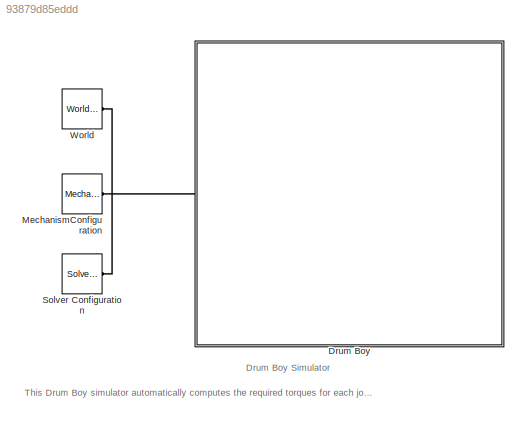
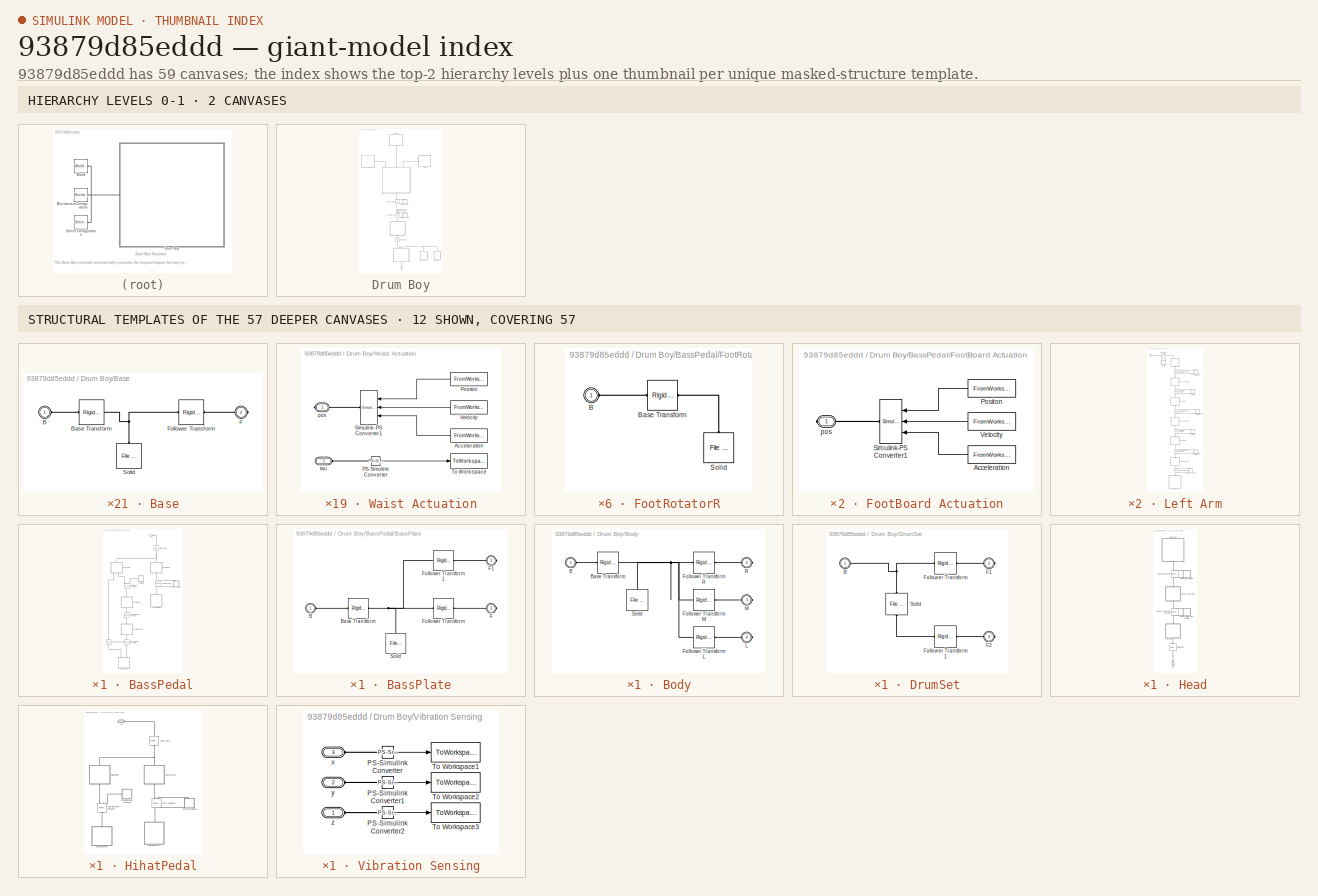
[diagram: thumbnail index - top-2 hierarchy levels (2 canvases) + 12 structural-template representatives of the remaining 57 canvases]
MODEL slx_93879d85eddd
KIND model
CONFIG AbsTol = auto
CONFIG EnableMultiTasking = on
CONFIG FixedStep = auto
CONFIG MaxStep = auto
CONFIG MinStep = auto
CONFIG RelTol = 1e-3
CONFIG SampleTimeConstraint = Unconstrained
CONFIG SolverName = VariableStepAuto
CONFIG StartTime = 0.0
CONFIG StopTime = tf
BLOCK [SubSystem] Drum Boy
  NameLocation = top
  Ports = [0, 0, 0, 0, 0, 1]
  RequestExecContextInheritance = off
BLOCK [PMIOPort] Drum Boy/B
  NameLocation = right
  Side = Left
BLOCK [SubSystem] Drum Boy/Base
  NameLocation = right
  Ports = [0, 0, 0, 0, 0, 1, 1]
  RequestExecContextInheritance = off
BLOCK [PMIOPort] Drum Boy/Base/B
  NameLocation = top
  Side = Left
BLOCK [Reference] Drum Boy/Base/Base Transform  REF=sm_lib/Frames and
Transforms/Rigid
Transform
  NameLocation = top
  Ports = [0, 0, 0, 0, 0, 1, 1]
  SourceBlock = sm_lib/Frames and\nTransforms/Rigid\nTransform
  SourceProductName = Multibody
  SourceType = Rigid\nTransform
BLOCK [PMIOPort] Drum Boy/Base/F
  NameLocation = top
  Port = 2
  Side = Right
BLOCK [Reference] Drum Boy/Base/Follower Transform  REF=sm_lib/Frames and
Transforms/Rigid
Transform
  Ports = [0, 0, 0, 0, 0, 1, 1]
  SourceBlock = sm_lib/Frames and\nTransforms/Rigid\nTransform
  SourceProductName = Multibody
  SourceType = Rigid\nTransform
BLOCK [Reference] Drum Boy/Base/Solid  REF=sm_lib/Body Elements/File Solid
  NameLocation = left
  Ports = [0, 0, 0, 0, 0, 1]
  SourceBlock = sm_lib/Body Elements/File Solid
  SourceProductName = Multibody
  SourceType = File Solid
BLOCK [SubSystem] Drum Boy/BassPedal
  NameLocation = left
  Ports = [0, 0, 0, 0, 0, 1]
  RequestExecContextInheritance = off
BLOCK [SubSystem] Drum Boy/BassPedal/BassBeater
  NameLocation = right
  Ports = [0, 0, 0, 0, 0, 2]
  RequestExecContextInheritance = off
BLOCK [Reference] Drum Boy/BassPedal/BassBeater Revolute  REF=sm_lib/Joints/Revolute Joint
  NameLocation = right
  Ports = [0, 0, 0, 0, 0, 1, 1]
  SourceBlock = sm_lib/Joints/Revolute Joint
  SourceProductName = Multibody
  SourceType = Revolute Joint
BLOCK [PMIOPort] Drum Boy/BassPedal/BassBeater/B
  NameLocation = top
  Side = Left
BLOCK [PMIOPort] Drum Boy/BassPedal/BassBeater/B1
  NameLocation = top
  Port = 2
  Side = Left
BLOCK [Reference] Drum Boy/BassPedal/BassBeater/Base Transform  REF=sm_lib/Frames and
Transforms/Rigid
Transform
  NameLocation = top
  Ports = [0, 0, 0, 0, 0, 1, 1]
  SourceBlock = sm_lib/Frames and\nTransforms/Rigid\nTransform
  SourceProductName = Multibody
  SourceType = Rigid\nTransform
BLOCK [Reference] Drum Boy/BassPedal/BassBeater/Base Transform1  REF=sm_lib/Frames and
Transforms/Rigid
Transform
  NameLocation = top
  Ports = [0, 0, 0, 0, 0, 1, 1]
  SourceBlock = sm_lib/Frames and\nTransforms/Rigid\nTransform
  SourceProductName = Multibody
  SourceType = Rigid\nTransform
BLOCK [Reference] Drum Boy/BassPedal/BassBeater/Solid  REF=sm_lib/Body Elements/File Solid
  NameLocation = left
  Ports = [0, 0, 0, 0, 0, 1]
  SourceBlock = sm_lib/Body Elements/File Solid
  SourceProductName = Multibody
  SourceType = File Solid
BLOCK [SubSystem] Drum Boy/BassPedal/BassPlate
  NameLocation = right
  Ports = [0, 0, 0, 0, 0, 1, 2]
  RequestExecContextInheritance = off
BLOCK [Reference] Drum Boy/BassPedal/BassPlate Revolute  REF=sm_lib/Joints/Revolute Joint
  NameLocation = right
  Ports = [0, 0, 0, 0, 0, 1, 1]
  SourceBlock = sm_lib/Joints/Revolute Joint
  SourceProductName = Multibody
  SourceType = Revolute Joint
BLOCK [PMIOPort] Drum Boy/BassPedal/BassPlate/B
  NameLocation = top
  Side = Left
BLOCK [Reference] Drum Boy/BassPedal/BassPlate/Base Transform  REF=sm_lib/Frames and
Transforms/Rigid
Transform
  NameLocation = top
  Ports = [0, 0, 0, 0, 0, 1, 1]
  SourceBlock = sm_lib/Frames and\nTransforms/Rigid\nTransform
  SourceProductName = Multibody
  SourceType = Rigid\nTransform
BLOCK [PMIOPort] Drum Boy/BassPedal/BassPlate/F
  NameLocation = top
  Port = 2
  Side = Right
BLOCK [PMIOPort] Drum Boy/BassPedal/BassPlate/F1
  NameLocation = top
  Port = 3
  Side = Right
BLOCK [Reference] Drum Boy/BassPedal/BassPlate/Follower Transform  REF=sm_lib/Frames and
Transforms/Rigid
Transform
  NameLocation = top
  Ports = [0, 0, 0, 0, 0, 1, 1]
  SourceBlock = sm_lib/Frames and\nTransforms/Rigid\nTransform
  SourceProductName = Multibody
  SourceType = Rigid\nTransform
BLOCK [Reference] Drum Boy/BassPedal/BassPlate/Follower Transform1  REF=sm_lib/Frames and
Transforms/Rigid
Transform
  NameLocation = top
  Ports = [0, 0, 0, 0, 0, 1, 1]
  SourceBlock = sm_lib/Frames and\nTransforms/Rigid\nTransform
  SourceProductName = Multibody
  SourceType = Rigid\nTransform
BLOCK [Reference] Drum Boy/BassPedal/BassPlate/Solid  REF=sm_lib/Body Elements/File Solid
  NameLocation = left
  Ports = [0, 0, 0, 0, 0, 1]
  SourceBlock = sm_lib/Body Elements/File Solid
  SourceProductName = Multibody
  SourceType = File Solid
BLOCK [SubSystem] Drum Boy/BassPedal/FootBoard
  NameLocation = right
  Ports = [0, 0, 0, 0, 0, 1, 1]
  RequestExecContextInheritance = off
BLOCK [SubSystem] Drum Boy/BassPedal/FootBoard Actuation
  Ports = [0, 0, 0, 0, 0, 0, 1]
  RequestExecContextInheritance = off
BLOCK [FromWorkspace] Drum Boy/BassPedal/FootBoard Actuation/Acceleration
  NameLocation = top
  SampleTime = T
  VariableName = d2xBS
BLOCK [FromWorkspace] Drum Boy/BassPedal/FootBoard Actuation/Positon
  NameLocation = top
  SampleTime = T
  VariableName = xBS
BLOCK [Reference] Drum Boy/BassPedal/FootBoard Actuation/Simulink-PS Converter1  REF=nesl_utility/Simulink-PS
Converter
  NameLocation = top
  Ports = [3, 0, 0, 0, 0, 0, 1]
  SourceBlock = nesl_utility/Simulink-PS\nConverter
  SourceProductName = Utilities
  SourceType = Simulink-PS\nConverter
BLOCK [FromWorkspace] Drum Boy/BassPedal/FootBoard Actuation/Velocity
  NameLocation = top
  SampleTime = T
  VariableName = dxBS
BLOCK [PMIOPort] Drum Boy/BassPedal/FootBoard Actuation/pos
  NameLocation = top
  Side = Right
BLOCK [Reference] Drum Boy/BassPedal/FootBoard Revolute  REF=sm_lib/Joints/Revolute Joint
  NameLocation = right
  Ports = [0, 0, 0, 0, 0, 2, 1]
  SourceBlock = sm_lib/Joints/Revolute Joint
  SourceProductName = Multibody
  SourceType = Revolute Joint
BLOCK [PMIOPort] Drum Boy/BassPedal/FootBoard/B
  NameLocation = top
  Side = Left
BLOCK [Reference] Drum Boy/BassPedal/FootBoard/Base Transform  REF=sm_lib/Frames and
Transforms/Rigid
Transform
  NameLocation = top
  Ports = [0, 0, 0, 0, 0, 1, 1]
  SourceBlock = sm_lib/Frames and\nTransforms/Rigid\nTransform
  SourceProductName = Multibody
  SourceType = Rigid\nTransform
BLOCK [PMIOPort] Drum Boy/BassPedal/FootBoard/F
  NameLocation = top
  Port = 2
  Side = Right
BLOCK [Reference] Drum Boy/BassPedal/FootBoard/Follower Transform  REF=sm_lib/Frames and
Transforms/Rigid
Transform
  NameLocation = top
  Ports = [0, 0, 0, 0, 0, 1, 1]
  SourceBlock = sm_lib/Frames and\nTransforms/Rigid\nTransform
  SourceProductName = Multibody
  SourceType = Rigid\nTransform
BLOCK [Reference] Drum Boy/BassPedal/FootBoard/Solid  REF=sm_lib/Body Elements/File Solid
  NameLocation = left
  Ports = [0, 0, 0, 0, 0, 1]
  SourceBlock = sm_lib/Body Elements/File Solid
  SourceProductName = Multibody
  SourceType = File Solid
BLOCK [SubSystem] Drum Boy/BassPedal/FootBoardLink
  NameLocation = right
  Ports = [0, 0, 0, 0, 0, 1, 1]
  RequestExecContextInheritance = off
BLOCK [Reference] Drum Boy/BassPedal/FootBoardLink Revolute  REF=sm_lib/Joints/Revolute Joint
  NameLocation = right
  Ports = [0, 0, 0, 0, 0, 1, 1]
  SourceBlock = sm_lib/Joints/Revolute Joint
  SourceProductName = Multibody
  SourceType = Revolute Joint
BLOCK [PMIOPort] Drum Boy/BassPedal/FootBoardLink/B
  NameLocation = top
  Side = Left
BLOCK [Reference] Drum Boy/BassPedal/FootBoardLink/Base Transform  REF=sm_lib/Frames and
Transforms/Rigid
Transform
  NameLocation = top
  Ports = [0, 0, 0, 0, 0, 1, 1]
  SourceBlock = sm_lib/Frames and\nTransforms/Rigid\nTransform
  SourceProductName = Multibody
  SourceType = Rigid\nTransform
BLOCK [PMIOPort] Drum Boy/BassPedal/FootBoardLink/F
  NameLocation = top
  Port = 2
  Side = Right
BLOCK [Reference] Drum Boy/BassPedal/FootBoardLink/Follower Transform  REF=sm_lib/Frames and
Transforms/Rigid
Transform
  NameLocation = top
  Ports = [0, 0, 0, 0, 0, 1, 1]
  SourceBlock = sm_lib/Frames and\nTransforms/Rigid\nTransform
  SourceProductName = Multibody
  SourceType = Rigid\nTransform
BLOCK [Reference] Drum Boy/BassPedal/FootBoardLink/Solid  REF=sm_lib/Body Elements/File Solid
  NameLocation = left
  Ports = [0, 0, 0, 0, 0, 1]
  SourceBlock = sm_lib/Body Elements/File Solid
  SourceProductName = Multibody
  SourceType = File Solid
BLOCK [SubSystem] Drum Boy/BassPedal/FootR Actuation
  NameLocation = left
  Ports = [0, 0, 0, 0, 0, 1, 1]
  RequestExecContextInheritance = off
BLOCK [FromWorkspace] Drum Boy/BassPedal/FootR Actuation/Acceleration
  NameLocation = top
  SampleTime = T
  VariableName = d2q18
BLOCK [Reference] Drum Boy/BassPedal/FootR Actuation/PS-Simulink Converter  REF=nesl_utility/PS-Simulink
Converter
  Ports = [0, 1, 0, 0, 0, 1]
  SourceBlock = nesl_utility/PS-Simulink\nConverter
  SourceProductBaseCode = PW,SS
  SourceType = PS-Simulink\nConverter
BLOCK [FromWorkspace] Drum Boy/BassPedal/FootR Actuation/Positon
  NameLocation = top
  SampleTime = T
  VariableName = q18
BLOCK [Reference] Drum Boy/BassPedal/FootR Actuation/Simulink-PS Converter1  REF=nesl_utility/Simulink-PS
Converter
  NameLocation = top
  Ports = [3, 0, 0, 0, 0, 0, 1]
  SourceBlock = nesl_utility/Simulink-PS\nConverter
  SourceProductName = Utilities
  SourceType = Simulink-PS\nConverter
BLOCK [ToWorkspace] Drum Boy/BassPedal/FootR Actuation/To Workspace
  FixptAsFi = on
  MaxDataPoints = inf
  Ports = [1]
  SampleTime = T
  Save2DSignal = 2-D array (concatenate along first dimension)
  VariableName = tau18
BLOCK [FromWorkspace] Drum Boy/BassPedal/FootR Actuation/Velocity
  NameLocation = top
  SampleTime = T
  VariableName = dq18
BLOCK [PMIOPort] Drum Boy/BassPedal/FootR Actuation/pos
  NameLocation = top
  Side = Right
BLOCK [PMIOPort] Drum Boy/BassPedal/FootR Actuation/tau
  Port = 2
  Side = Left
BLOCK [Reference] Drum Boy/BassPedal/FootR Revolute  REF=sm_lib/Joints/Revolute Joint
  NameLocation = right
  Ports = [0, 0, 0, 0, 0, 2, 2]
  SourceBlock = sm_lib/Joints/Revolute Joint
  SourceProductName = Multibody
  SourceType = Revolute Joint
BLOCK [SubSystem] Drum Boy/BassPedal/FootRotatorR
  NameLocation = right
  Ports = [0, 0, 0, 0, 0, 1]
  RequestExecContextInheritance = off
BLOCK [PMIOPort] Drum Boy/BassPedal/FootRotatorR/B
  NameLocation = top
  Side = Left
BLOCK [Reference] Drum Boy/BassPedal/FootRotatorR/Base Transform  REF=sm_lib/Frames and
Transforms/Rigid
Transform
  NameLocation = top
  Ports = [0, 0, 0, 0, 0, 1, 1]
  SourceBlock = sm_lib/Frames and\nTransforms/Rigid\nTransform
  SourceProductName = Multibody
  SourceType = Rigid\nTransform
BLOCK [Reference] Drum Boy/BassPedal/FootRotatorR/Solid  REF=sm_lib/Body Elements/File Solid
  NameLocation = left
  Ports = [0, 0, 0, 0, 0, 1]
  SourceBlock = sm_lib/Body Elements/File Solid
  SourceProductName = Multibody
  SourceType = File Solid
BLOCK [SubSystem] Drum Boy/BassPedal/FootStatorR
  NameLocation = right
  Ports = [0, 0, 0, 0, 0, 1, 1]
  RequestExecContextInheritance = off
BLOCK [PMIOPort] Drum Boy/BassPedal/FootStatorR/B
  NameLocation = top
  Side = Left
BLOCK [Reference] Drum Boy/BassPedal/FootStatorR/Base Transform  REF=sm_lib/Frames and
Transforms/Rigid
Transform
  NameLocation = top
  Ports = [0, 0, 0, 0, 0, 1, 1]
  SourceBlock = sm_lib/Frames and\nTransforms/Rigid\nTransform
  SourceProductName = Multibody
  SourceType = Rigid\nTransform
BLOCK [PMIOPort] Drum Boy/BassPedal/FootStatorR/F
  NameLocation = top
  Port = 2
  Side = Right
BLOCK [Reference] Drum Boy/BassPedal/FootStatorR/Follower Transform  REF=sm_lib/Frames and
Transforms/Rigid
Transform
  NameLocation = top
  Ports = [0, 0, 0, 0, 0, 1, 1]
  SourceBlock = sm_lib/Frames and\nTransforms/Rigid\nTransform
  SourceProductName = Multibody
  SourceType = Rigid\nTransform
BLOCK [Reference] Drum Boy/BassPedal/FootStatorR/Solid  REF=sm_lib/Body Elements/File Solid
  NameLocation = left
  Ports = [0, 0, 0, 0, 0, 1]
  SourceBlock = sm_lib/Body Elements/File Solid
  SourceProductName = Multibody
  SourceType = File Solid
BLOCK [PMIOPort] Drum Boy/BassPedal/In
  Side = Left
BLOCK [Reference] Drum Boy/BassPedal/Weld Joint3  REF=sm_lib/Joints/Weld Joint
  NameLocation = left
  Ports = [0, 0, 0, 0, 0, 1, 1]
  SourceBlock = sm_lib/Joints/Weld Joint
  SourceProductBaseCode = MS
  SourceType = Weld Joint
BLOCK [SubSystem] Drum Boy/Body
  NameLocation = right
  Ports = [0, 0, 0, 0, 0, 1, 3]
  RequestExecContextInheritance = off
BLOCK [PMIOPort] Drum Boy/Body/B
  NameLocation = top
  Side = Left
BLOCK [Reference] Drum Boy/Body/Base Transform  REF=sm_lib/Frames and
Transforms/Rigid
Transform
  NameLocation = top
  Ports = [0, 0, 0, 0, 0, 1, 1]
  SourceBlock = sm_lib/Frames and\nTransforms/Rigid\nTransform
  SourceProductName = Multibody
  SourceType = Rigid\nTransform
BLOCK [Reference] Drum Boy/Body/Follower Transform L  REF=sm_lib/Frames and
Transforms/Rigid
Transform
  Ports = [0, 0, 0, 0, 0, 1, 1]
  SourceBlock = sm_lib/Frames and\nTransforms/Rigid\nTransform
  SourceProductName = Multibody
  SourceType = Rigid\nTransform
BLOCK [Reference] Drum Boy/Body/Follower Transform M  REF=sm_lib/Frames and
Transforms/Rigid
Transform
  Ports = [0, 0, 0, 0, 0, 1, 1]
  SourceBlock = sm_lib/Frames and\nTransforms/Rigid\nTransform
  SourceProductName = Multibody
  SourceType = Rigid\nTransform
BLOCK [Reference] Drum Boy/Body/Follower Transform R  REF=sm_lib/Frames and
Transforms/Rigid
Transform
  Ports = [0, 0, 0, 0, 0, 1, 1]
  SourceBlock = sm_lib/Frames and\nTransforms/Rigid\nTransform
  SourceProductName = Multibody
  SourceType = Rigid\nTransform
BLOCK [PMIOPort] Drum Boy/Body/L
  NameLocation = top
  Port = 4
  Side = Right
BLOCK [PMIOPort] Drum Boy/Body/M
  NameLocation = top
  Port = 3
  Side = Right
BLOCK [PMIOPort] Drum Boy/Body/R
  NameLocation = top
  Port = 2
  Side = Right
BLOCK [Reference] Drum Boy/Body/Solid  REF=sm_lib/Body Elements/File Solid
  NameLocation = left
  Ports = [0, 0, 0, 0, 0, 1]
  SourceBlock = sm_lib/Body Elements/File Solid
  SourceProductName = Multibody
  SourceType = File Solid
BLOCK [SubSystem] Drum Boy/DrumSet
  NameLocation = right
  Ports = [0, 0, 0, 0, 0, 1, 2]
  RequestExecContextInheritance = off
BLOCK [PMIOPort] Drum Boy/DrumSet/B
  NameLocation = top
  Side = Left
BLOCK [PMIOPort] Drum Boy/DrumSet/F1
  NameLocation = top
  Port = 2
  Side = Right
BLOCK [PMIOPort] Drum Boy/DrumSet/F2
  NameLocation = top
  Port = 3
  Side = Right
BLOCK [Reference] Drum Boy/DrumSet/Follower Transform  REF=sm_lib/Frames and
Transforms/Rigid
Transform
  Ports = [0, 0, 0, 0, 0, 1, 1]
  SourceBlock = sm_lib/Frames and\nTransforms/Rigid\nTransform
  SourceProductName = Multibody
  SourceType = Rigid\nTransform
BLOCK [Reference] Drum Boy/DrumSet/Follower Transform1  REF=sm_lib/Frames and
Transforms/Rigid
Transform
  Ports = [0, 0, 0, 0, 0, 1, 1]
  SourceBlock = sm_lib/Frames and\nTransforms/Rigid\nTransform
  SourceProductName = Multibody
  SourceType = Rigid\nTransform
BLOCK [Reference] Drum Boy/DrumSet/Solid  REF=sm_lib/Body Elements/File Solid
  NameLocation = left
  Ports = [0, 0, 0, 0, 0, 1, 1]
  SourceBlock = sm_lib/Body Elements/File Solid
  SourceProductName = Multibody
  SourceType = File Solid
BLOCK [SubSystem] Drum Boy/Head
  NameLocation = right
  Ports = [0, 0, 0, 0, 0, 1]
  RequestExecContextInheritance = off
BLOCK [SubSystem] Drum Boy/Head/HeadLink
  NameLocation = left
  Ports = [0, 0, 0, 0, 0, 1]
  RequestExecContextInheritance = off
BLOCK [SubSystem] Drum Boy/Head/HeadLink Actuation
  NameLocation = right
  Ports = [0, 0, 0, 0, 0, 1, 1]
  RequestExecContextInheritance = off
BLOCK [FromWorkspace] Drum Boy/Head/HeadLink Actuation/Acceleration
  NameLocation = top
  SampleTime = T
  VariableName = d2q17
BLOCK [Reference] Drum Boy/Head/HeadLink Actuation/PS-Simulink Converter  REF=nesl_utility/PS-Simulink
Converter
  Ports = [0, 1, 0, 0, 0, 1]
  SourceBlock = nesl_utility/PS-Simulink\nConverter
  SourceProductBaseCode = PW,SS
  SourceType = PS-Simulink\nConverter
BLOCK [FromWorkspace] Drum Boy/Head/HeadLink Actuation/Positon
  NameLocation = top
  SampleTime = T
  VariableName = q17
BLOCK [Reference] Drum Boy/Head/HeadLink Actuation/Simulink-PS Converter1  REF=nesl_utility/Simulink-PS
Converter
  NameLocation = top
  Ports = [3, 0, 0, 0, 0, 0, 1]
  SourceBlock = nesl_utility/Simulink-PS\nConverter
  SourceProductName = Utilities
  SourceType = Simulink-PS\nConverter
BLOCK [ToWorkspace] Drum Boy/Head/HeadLink Actuation/To Workspace
  FixptAsFi = on
  MaxDataPoints = inf
  Ports = [1]
  SampleTime = T
  Save2DSignal = 2-D array (concatenate along first dimension)
  VariableName = tau17
BLOCK [FromWorkspace] Drum Boy/Head/HeadLink Actuation/Velocity
  NameLocation = top
  SampleTime = T
  VariableName = dq17
BLOCK [PMIOPort] Drum Boy/Head/HeadLink Actuation/pos
  NameLocation = top
  Side = Right
BLOCK [PMIOPort] Drum Boy/Head/HeadLink Actuation/tau
  Port = 2
  Side = Left
BLOCK [Reference] Drum Boy/Head/HeadLink Revolute  REF=sm_lib/Joints/Revolute Joint
  NameLocation = left
  Ports = [0, 0, 0, 0, 0, 2, 2]
  SourceBlock = sm_lib/Joints/Revolute Joint
  SourceProductName = Multibody
  SourceType = Revolute Joint
BLOCK [PMIOPort] Drum Boy/Head/HeadLink/B
  NameLocation = top
  Side = Left
BLOCK [Reference] Drum Boy/Head/HeadLink/Base Transform  REF=sm_lib/Frames and
Transforms/Rigid
Transform
  NameLocation = top
  Ports = [0, 0, 0, 0, 0, 1, 1]
  SourceBlock = sm_lib/Frames and\nTransforms/Rigid\nTransform
  SourceProductName = Multibody
  SourceType = Rigid\nTransform
BLOCK [Reference] Drum Boy/Head/HeadLink/Solid  REF=sm_lib/Body Elements/File Solid
  NameLocation = left
  Ports = [0, 0, 0, 0, 0, 1]
  SourceBlock = sm_lib/Body Elements/File Solid
  SourceProductName = Multibody
  SourceType = File Solid
BLOCK [PMIOPort] Drum Boy/Head/In
  NameLocation = right
  Side = Left
BLOCK [SubSystem] Drum Boy/Head/NeckLink
  NameLocation = left
  Ports = [0, 0, 0, 0, 0, 1, 1]
  RequestExecContextInheritance = off
BLOCK [PMIOPort] Drum Boy/Head/NeckLink/B
  NameLocation = top
  Side = Left
BLOCK [Reference] Drum Boy/Head/NeckLink/Base Transform  REF=sm_lib/Frames and
Transforms/Rigid
Transform
  NameLocation = top
  Ports = [0, 0, 0, 0, 0, 1, 1]
  SourceBlock = sm_lib/Frames and\nTransforms/Rigid\nTransform
  SourceProductName = Multibody
  SourceType = Rigid\nTransform
BLOCK [PMIOPort] Drum Boy/Head/NeckLink/F
  NameLocation = top
  Port = 2
  Side = Right
BLOCK [Reference] Drum Boy/Head/NeckLink/Follower Transform  REF=sm_lib/Frames and
Transforms/Rigid
Transform
  NameLocation = top
  Ports = [0, 0, 0, 0, 0, 1, 1]
  SourceBlock = sm_lib/Frames and\nTransforms/Rigid\nTransform
  SourceProductName = Multibody
  SourceType = Rigid\nTransform
BLOCK [Reference] Drum Boy/Head/NeckLink/Solid  REF=sm_lib/Body Elements/File Solid
  NameLocation = left
  Ports = [0, 0, 0, 0, 0, 1]
  SourceBlock = sm_lib/Body Elements/File Solid
  SourceProductName = Multibody
  SourceType = File Solid
BLOCK [SubSystem] Drum Boy/Head/UpperLowerJoint
  NameLocation = left
  Ports = [0, 0, 0, 0, 0, 1, 1]
  RequestExecContextInheritance = off
BLOCK [SubSystem] Drum Boy/Head/UpperLowerJoint Actuation
  NameLocation = right
  Ports = [0, 0, 0, 0, 0, 1, 1]
  RequestExecContextInheritance = off
BLOCK [FromWorkspace] Drum Boy/Head/UpperLowerJoint Actuation/Acceleration
  NameLocation = top
  SampleTime = T
  VariableName = d2q16
BLOCK [Reference] Drum Boy/Head/UpperLowerJoint Actuation/PS-Simulink Converter  REF=nesl_utility/PS-Simulink
Converter
  Ports = [0, 1, 0, 0, 0, 1]
  SourceBlock = nesl_utility/PS-Simulink\nConverter
  SourceProductBaseCode = PW,SS
  SourceType = PS-Simulink\nConverter
BLOCK [FromWorkspace] Drum Boy/Head/UpperLowerJoint Actuation/Positon
  NameLocation = top
  SampleTime = T
  VariableName = q16
BLOCK [Reference] Drum Boy/Head/UpperLowerJoint Actuation/Simulink-PS Converter1  REF=nesl_utility/Simulink-PS
Converter
  NameLocation = top
  Ports = [3, 0, 0, 0, 0, 0, 1]
  SourceBlock = nesl_utility/Simulink-PS\nConverter
  SourceProductName = Utilities
  SourceType = Simulink-PS\nConverter
BLOCK [ToWorkspace] Drum Boy/Head/UpperLowerJoint Actuation/To Workspace
  FixptAsFi = on
  MaxDataPoints = inf
  Ports = [1]
  SampleTime = T
  Save2DSignal = 2-D array (concatenate along first dimension)
  VariableName = tau16
BLOCK [FromWorkspace] Drum Boy/Head/UpperLowerJoint Actuation/Velocity
  NameLocation = top
  SampleTime = T
  VariableName = dq16
BLOCK [PMIOPort] Drum Boy/Head/UpperLowerJoint Actuation/pos
  NameLocation = top
  Side = Right
BLOCK [PMIOPort] Drum Boy/Head/UpperLowerJoint Actuation/tau
  Port = 2
  Side = Left
BLOCK [Reference] Drum Boy/Head/UpperLowerJoint Revolute  REF=sm_lib/Joints/Revolute Joint
  NameLocation = left
  Ports = [0, 0, 0, 0, 0, 2, 2]
  SourceBlock = sm_lib/Joints/Revolute Joint
  SourceProductName = Multibody
  SourceType = Revolute Joint
BLOCK [PMIOPort] Drum Boy/Head/UpperLowerJoint/B
  NameLocation = top
  Side = Left
BLOCK [Reference] Drum Boy/Head/UpperLowerJoint/Base Transform  REF=sm_lib/Frames and
Transforms/Rigid
Transform
  NameLocation = top
  Ports = [0, 0, 0, 0, 0, 1, 1]
  SourceBlock = sm_lib/Frames and\nTransforms/Rigid\nTransform
  SourceProductName = Multibody
  SourceType = Rigid\nTransform
BLOCK [PMIOPort] Drum Boy/Head/UpperLowerJoint/F
  NameLocation = top
  Port = 2
  Side = Right
BLOCK [Reference] Drum Boy/Head/UpperLowerJoint/Follower Transform  REF=sm_lib/Frames and
Transforms/Rigid
Transform
  NameLocation = top
  Ports = [0, 0, 0, 0, 0, 1, 1]
  SourceBlock = sm_lib/Frames and\nTransforms/Rigid\nTransform
  SourceProductName = Multibody
  SourceType = Rigid\nTransform
BLOCK [Reference] Drum Boy/Head/UpperLowerJoint/Solid  REF=sm_lib/Body Elements/File Solid
  NameLocation = left
  Ports = [0, 0, 0, 0, 0, 1]
  SourceBlock = sm_lib/Body Elements/File Solid
  SourceProductName = Multibody
  SourceType = File Solid
BLOCK [Reference] Drum Boy/Head/Weld Joint  REF=sm_lib/Joints/Weld Joint
  NameLocation = right
  Ports = [0, 0, 0, 0, 0, 1, 1]
  SourceBlock = sm_lib/Joints/Weld Joint
  SourceProductBaseCode = MS
  SourceType = Weld Joint
BLOCK [SubSystem] Drum Boy/HihatPedal
  NameLocation = left
  Ports = [0, 0, 0, 0, 0, 1]
  RequestExecContextInheritance = off
BLOCK [SubSystem] Drum Boy/HihatPedal/FootBoardHH
  NameLocation = right
  Ports = [0, 0, 0, 0, 0, 1]
  RequestExecContextInheritance = off
BLOCK [SubSystem] Drum Boy/HihatPedal/FootBoardHH Actuation
  Ports = [0, 0, 0, 0, 0, 0, 1]
  RequestExecContextInheritance = off
BLOCK [FromWorkspace] Drum Boy/HihatPedal/FootBoardHH Actuation/Acceleration
  NameLocation = top
  SampleTime = T
  VariableName = d2xHH
BLOCK [FromWorkspace] Drum Boy/HihatPedal/FootBoardHH Actuation/Positon
  NameLocation = top
  SampleTime = T
  VariableName = xHH
BLOCK [Reference] Drum Boy/HihatPedal/FootBoardHH Actuation/Simulink-PS Converter1  REF=nesl_utility/Simulink-PS
Converter
  NameLocation = top
  Ports = [3, 0, 0, 0, 0, 0, 1]
  SourceBlock = nesl_utility/Simulink-PS\nConverter
  SourceProductName = Utilities
  SourceType = Simulink-PS\nConverter
BLOCK [FromWorkspace] Drum Boy/HihatPedal/FootBoardHH Actuation/Velocity
  NameLocation = top
  SampleTime = T
  VariableName = dxHH
BLOCK [PMIOPort] Drum Boy/HihatPedal/FootBoardHH Actuation/pos
  NameLocation = top
  Side = Right
BLOCK [Reference] Drum Boy/HihatPedal/FootBoardHH Revolute  REF=sm_lib/Joints/Revolute Joint
  NameLocation = right
  Ports = [0, 0, 0, 0, 0, 2, 1]
  SourceBlock = sm_lib/Joints/Revolute Joint
  SourceProductName = Multibody
  SourceType = Revolute Joint
BLOCK [PMIOPort] Drum Boy/HihatPedal/FootBoardHH/B
  NameLocation = top
  Side = Left
BLOCK [Reference] Drum Boy/HihatPedal/FootBoardHH/Base Transform  REF=sm_lib/Frames and
Transforms/Rigid
Transform
  NameLocation = top
  Ports = [0, 0, 0, 0, 0, 1, 1]
  SourceBlock = sm_lib/Frames and\nTransforms/Rigid\nTransform
  SourceProductName = Multibody
  SourceType = Rigid\nTransform
BLOCK [Reference] Drum Boy/HihatPedal/FootBoardHH/Solid  REF=sm_lib/Body Elements/File Solid
  NameLocation = left
  Ports = [0, 0, 0, 0, 0, 1]
  SourceBlock = sm_lib/Body Elements/File Solid
  SourceProductName = Multibody
  SourceType = File Solid
BLOCK [SubSystem] Drum Boy/HihatPedal/FootL Actuation
  NameLocation = left
  Ports = [0, 0, 0, 0, 0, 1, 1]
  RequestExecContextInheritance = off
BLOCK [FromWorkspace] Drum Boy/HihatPedal/FootL Actuation/Acceleration
  NameLocation = top
  SampleTime = T
  VariableName = d2q19
BLOCK [Reference] Drum Boy/HihatPedal/FootL Actuation/PS-Simulink Converter  REF=nesl_utility/PS-Simulink
Converter
  Ports = [0, 1, 0, 0, 0, 1]
  SourceBlock = nesl_utility/PS-Simulink\nConverter
  SourceProductBaseCode = PW,SS
  SourceType = PS-Simulink\nConverter
BLOCK [FromWorkspace] Drum Boy/HihatPedal/FootL Actuation/Positon
  NameLocation = top
  SampleTime = T
  VariableName = q19
BLOCK [Reference] Drum Boy/HihatPedal/FootL Actuation/Simulink-PS Converter1  REF=nesl_utility/Simulink-PS
Converter
  NameLocation = top
  Ports = [3, 0, 0, 0, 0, 0, 1]
  SourceBlock = nesl_utility/Simulink-PS\nConverter
  SourceProductName = Utilities
  SourceType = Simulink-PS\nConverter
BLOCK [ToWorkspace] Drum Boy/HihatPedal/FootL Actuation/To Workspace
  FixptAsFi = on
  MaxDataPoints = inf
  Ports = [1]
  SampleTime = T
  Save2DSignal = 2-D array (concatenate along first dimension)
  VariableName = tau19
BLOCK [FromWorkspace] Drum Boy/HihatPedal/FootL Actuation/Velocity
  NameLocation = top
  SampleTime = T
  VariableName = dq19
BLOCK [PMIOPort] Drum Boy/HihatPedal/FootL Actuation/pos
  NameLocation = top
  Side = Right
BLOCK [PMIOPort] Drum Boy/HihatPedal/FootL Actuation/tau
  Port = 2
  Side = Left
BLOCK [Reference] Drum Boy/HihatPedal/FootL Revolute  REF=sm_lib/Joints/Revolute Joint
  NameLocation = right
  Ports = [0, 0, 0, 0, 0, 2, 2]
  SourceBlock = sm_lib/Joints/Revolute Joint
  SourceProductName = Multibody
  SourceType = Revolute Joint
BLOCK [SubSystem] Drum Boy/HihatPedal/FootRotatorL
  NameLocation = right
  Ports = [0, 0, 0, 0, 0, 1]
  RequestExecContextInheritance = off
BLOCK [PMIOPort] Drum Boy/HihatPedal/FootRotatorL/B
  NameLocation = top
  Side = Left
BLOCK [Reference] Drum Boy/HihatPedal/FootRotatorL/Base Transform  REF=sm_lib/Frames and
Transforms/Rigid
Transform
  NameLocation = top
  Ports = [0, 0, 0, 0, 0, 1, 1]
  SourceBlock = sm_lib/Frames and\nTransforms/Rigid\nTransform
  SourceProductName = Multibody
  SourceType = Rigid\nTransform
BLOCK [Reference] Drum Boy/HihatPedal/FootRotatorL/Solid  REF=sm_lib/Body Elements/File Solid
  NameLocation = left
  Ports = [0, 0, 0, 0, 0, 1]
  SourceBlock = sm_lib/Body Elements/File Solid
  SourceProductName = Multibody
  SourceType = File Solid
BLOCK [SubSystem] Drum Boy/HihatPedal/FootStatorL
  NameLocation = right
  Ports = [0, 0, 0, 0, 0, 1, 1]
  RequestExecContextInheritance = off
BLOCK [PMIOPort] Drum Boy/HihatPedal/FootStatorL/B
  NameLocation = top
  Side = Left
BLOCK [Reference] Drum Boy/HihatPedal/FootStatorL/Base Transform  REF=sm_lib/Frames and
Transforms/Rigid
Transform
  NameLocation = top
  Ports = [0, 0, 0, 0, 0, 1, 1]
  SourceBlock = sm_lib/Frames and\nTransforms/Rigid\nTransform
  SourceProductName = Multibody
  SourceType = Rigid\nTransform
BLOCK [PMIOPort] Drum Boy/HihatPedal/FootStatorL/F
  NameLocation = top
  Port = 2
  Side = Right
BLOCK [Reference] Drum Boy/HihatPedal/FootStatorL/Follower Transform  REF=sm_lib/Frames and
Transforms/Rigid
Transform
  NameLocation = top
  Ports = [0, 0, 0, 0, 0, 1, 1]
  SourceBlock = sm_lib/Frames and\nTransforms/Rigid\nTransform
  SourceProductName = Multibody
  SourceType = Rigid\nTransform
BLOCK [Reference] Drum Boy/HihatPedal/FootStatorL/Solid  REF=sm_lib/Body Elements/File Solid
  NameLocation = left
  Ports = [0, 0, 0, 0, 0, 1]
  SourceBlock = sm_lib/Body Elements/File Solid
  SourceProductName = Multibody
  SourceType = File Solid
BLOCK [SubSystem] Drum Boy/HihatPedal/HiHatPlate
  NameLocation = right
  Ports = [0, 0, 0, 0, 0, 1, 1]
  RequestExecContextInheritance = off
BLOCK [PMIOPort] Drum Boy/HihatPedal/HiHatPlate/B
  NameLocation = top
  Side = Left
BLOCK [Reference] Drum Boy/HihatPedal/HiHatPlate/Base Transform  REF=sm_lib/Frames and
Transforms/Rigid
Transform
  NameLocation = top
  Ports = [0, 0, 0, 0, 0, 1, 1]
  SourceBlock = sm_lib/Frames and\nTransforms/Rigid\nTransform
  SourceProductName = Multibody
  SourceType = Rigid\nTransform
BLOCK [PMIOPort] Drum Boy/HihatPedal/HiHatPlate/F
  NameLocation = top
  Port = 2
  Side = Right
BLOCK [Reference] Drum Boy/HihatPedal/HiHatPlate/Follower Transform  REF=sm_lib/Frames and
Transforms/Rigid
Transform
  NameLocation = top
  Ports = [0, 0, 0, 0, 0, 1, 1]
  SourceBlock = sm_lib/Frames and\nTransforms/Rigid\nTransform
  SourceProductName = Multibody
  SourceType = Rigid\nTransform
BLOCK [Reference] Drum Boy/HihatPedal/HiHatPlate/Solid  REF=sm_lib/Body Elements/File Solid
  NameLocation = left
  Ports = [0, 0, 0, 0, 0, 1]
  SourceBlock = sm_lib/Body Elements/File Solid
  SourceProductName = Multibody
  SourceType = File Solid
BLOCK [PMIOPort] Drum Boy/HihatPedal/In
  Side = Left
BLOCK [Reference] Drum Boy/HihatPedal/Weld Joint2  REF=sm_lib/Joints/Weld Joint
  NameLocation = left
  Ports = [0, 0, 0, 0, 0, 1, 1]
  SourceBlock = sm_lib/Joints/Weld Joint
  SourceProductBaseCode = MS
  SourceType = Weld Joint
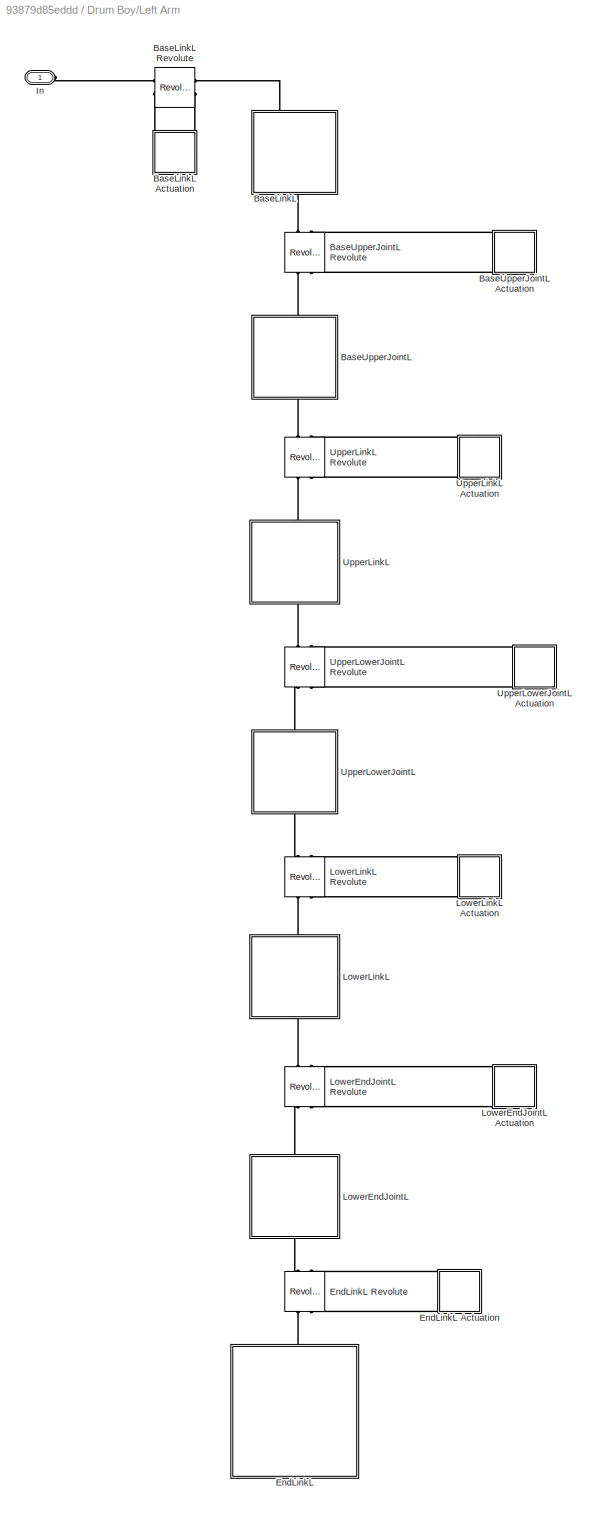
BLOCK [SubSystem] Drum Boy/Left Arm
  Ports = [0, 0, 0, 0, 0, 1]
  RequestExecContextInheritance = off
BLOCK [SubSystem] Drum Boy/Left Arm/BaseLinkL
  NameLocation = right
  Ports = [0, 0, 0, 0, 0, 1, 1]
  RequestExecContextInheritance = off
BLOCK [SubSystem] Drum Boy/Left Arm/BaseLinkL Actuation
  Ports = [0, 0, 0, 0, 0, 1, 1]
  RequestExecContextInheritance = off
BLOCK [FromWorkspace] Drum Boy/Left Arm/BaseLinkL Actuation/Acceleration
  NameLocation = top
  SampleTime = T
  VariableName = d2q9
BLOCK [Reference] Drum Boy/Left Arm/BaseLinkL Actuation/PS-Simulink Converter  REF=nesl_utility/PS-Simulink
Converter
  Ports = [0, 1, 0, 0, 0, 1]
  SourceBlock = nesl_utility/PS-Simulink\nConverter
  SourceProductBaseCode = PW,SS
  SourceType = PS-Simulink\nConverter
BLOCK [FromWorkspace] Drum Boy/Left Arm/BaseLinkL Actuation/Positon
  NameLocation = top
  SampleTime = T
  VariableName = q9
BLOCK [Reference] Drum Boy/Left Arm/BaseLinkL Actuation/Simulink-PS Converter1  REF=nesl_utility/Simulink-PS
Converter
  NameLocation = top
  Ports = [3, 0, 0, 0, 0, 0, 1]
  SourceBlock = nesl_utility/Simulink-PS\nConverter
  SourceProductName = Utilities
  SourceType = Simulink-PS\nConverter
BLOCK [ToWorkspace] Drum Boy/Left Arm/BaseLinkL Actuation/To Workspace
  FixptAsFi = on
  MaxDataPoints = inf
  Ports = [1]
  SampleTime = T
  Save2DSignal = 2-D array (concatenate along first dimension)
  VariableName = tau9
BLOCK [FromWorkspace] Drum Boy/Left Arm/BaseLinkL Actuation/Velocity
  NameLocation = top
  SampleTime = T
  VariableName = dq9
BLOCK [PMIOPort] Drum Boy/Left Arm/BaseLinkL Actuation/pos
  NameLocation = top
  Side = Right
BLOCK [PMIOPort] Drum Boy/Left Arm/BaseLinkL Actuation/tau
  Port = 2
  Side = Left
BLOCK [Reference] Drum Boy/Left Arm/BaseLinkL Revolute  REF=sm_lib/Joints/Revolute Joint
  NameLocation = top
  Ports = [0, 0, 0, 0, 0, 2, 2]
  SourceBlock = sm_lib/Joints/Revolute Joint
  SourceProductName = Multibody
  SourceType = Revolute Joint
BLOCK [PMIOPort] Drum Boy/Left Arm/BaseLinkL/B
  NameLocation = top
  Side = Left
BLOCK [Reference] Drum Boy/Left Arm/BaseLinkL/Base Transform  REF=sm_lib/Frames and
Transforms/Rigid
Transform
  NameLocation = top
  Ports = [0, 0, 0, 0, 0, 1, 1]
  SourceBlock = sm_lib/Frames and\nTransforms/Rigid\nTransform
  SourceProductName = Multibody
  SourceType = Rigid\nTransform
BLOCK [PMIOPort] Drum Boy/Left Arm/BaseLinkL/F
  NameLocation = top
  Port = 2
  Side = Right
BLOCK [Reference] Drum Boy/Left Arm/BaseLinkL/Follower Transform  REF=sm_lib/Frames and
Transforms/Rigid
Transform
  NameLocation = top
  Ports = [0, 0, 0, 0, 0, 1, 1]
  SourceBlock = sm_lib/Frames and\nTransforms/Rigid\nTransform
  SourceProductName = Multibody
  SourceType = Rigid\nTransform
BLOCK [Reference] Drum Boy/Left Arm/BaseLinkL/Solid  REF=sm_lib/Body Elements/File Solid
  NameLocation = left
  Ports = [0, 0, 0, 0, 0, 1]
  SourceBlock = sm_lib/Body Elements/File Solid
  SourceProductName = Multibody
  SourceType = File Solid
BLOCK [SubSystem] Drum Boy/Left Arm/BaseUpperJointL
  NameLocation = right
  Ports = [0, 0, 0, 0, 0, 1, 1]
  RequestExecContextInheritance = off
BLOCK [SubSystem] Drum Boy/Left Arm/BaseUpperJointL Actuation
  NameLocation = left
  Ports = [0, 0, 0, 0, 0, 1, 1]
  RequestExecContextInheritance = off
BLOCK [FromWorkspace] Drum Boy/Left Arm/BaseUpperJointL Actuation/Acceleration
  NameLocation = top
  SampleTime = T
  VariableName = d2q10
BLOCK [Reference] Drum Boy/Left Arm/BaseUpperJointL Actuation/PS-Simulink Converter  REF=nesl_utility/PS-Simulink
Converter
  Ports = [0, 1, 0, 0, 0, 1]
  SourceBlock = nesl_utility/PS-Simulink\nConverter
  SourceProductBaseCode = PW,SS
  SourceType = PS-Simulink\nConverter
BLOCK [FromWorkspace] Drum Boy/Left Arm/BaseUpperJointL Actuation/Positon
  NameLocation = top
  SampleTime = T
  VariableName = q10
BLOCK [Reference] Drum Boy/Left Arm/BaseUpperJointL Actuation/Simulink-PS Converter1  REF=nesl_utility/Simulink-PS
Converter
  NameLocation = top
  Ports = [3, 0, 0, 0, 0, 0, 1]
  SourceBlock = nesl_utility/Simulink-PS\nConverter
  SourceProductName = Utilities
  SourceType = Simulink-PS\nConverter
BLOCK [ToWorkspace] Drum Boy/Left Arm/BaseUpperJointL Actuation/To Workspace
  FixptAsFi = on
  MaxDataPoints = inf
  Ports = [1]
  SampleTime = T
  Save2DSignal = 2-D array (concatenate along first dimension)
  VariableName = tau10
BLOCK [FromWorkspace] Drum Boy/Left Arm/BaseUpperJointL Actuation/Velocity
  NameLocation = top
  SampleTime = T
  VariableName = dq10
BLOCK [PMIOPort] Drum Boy/Left Arm/BaseUpperJointL Actuation/pos
  NameLocation = top
  Side = Right
BLOCK [PMIOPort] Drum Boy/Left Arm/BaseUpperJointL Actuation/tau
  Port = 2
  Side = Left
BLOCK [Reference] Drum Boy/Left Arm/BaseUpperJointL Revolute  REF=sm_lib/Joints/Revolute Joint
  NameLocation = right
  Ports = [0, 0, 0, 0, 0, 2, 2]
  SourceBlock = sm_lib/Joints/Revolute Joint
  SourceProductName = Multibody
  SourceType = Revolute Joint
BLOCK [PMIOPort] Drum Boy/Left Arm/BaseUpperJointL/B
  NameLocation = top
  Side = Left
BLOCK [Reference] Drum Boy/Left Arm/BaseUpperJointL/Base Transform  REF=sm_lib/Frames and
Transforms/Rigid
Transform
  NameLocation = top
  Ports = [0, 0, 0, 0, 0, 1, 1]
  SourceBlock = sm_lib/Frames and\nTransforms/Rigid\nTransform
  SourceProductName = Multibody
  SourceType = Rigid\nTransform
BLOCK [PMIOPort] Drum Boy/Left Arm/BaseUpperJointL/F
  NameLocation = top
  Port = 2
  Side = Right
BLOCK [Reference] Drum Boy/Left Arm/BaseUpperJointL/Follower Transform  REF=sm_lib/Frames and
Transforms/Rigid
Transform
  NameLocation = top
  Ports = [0, 0, 0, 0, 0, 1, 1]
  SourceBlock = sm_lib/Frames and\nTransforms/Rigid\nTransform
  SourceProductName = Multibody
  SourceType = Rigid\nTransform
BLOCK [Reference] Drum Boy/Left Arm/BaseUpperJointL/Solid  REF=sm_lib/Body Elements/File Solid
  NameLocation = left
  Ports = [0, 0, 0, 0, 0, 1]
  SourceBlock = sm_lib/Body Elements/File Solid
  SourceProductName = Multibody
  SourceType = File Solid
BLOCK [SubSystem] Drum Boy/Left Arm/EndLinkL
  NameLocation = right
  Ports = [0, 0, 0, 0, 0, 1]
  RequestExecContextInheritance = off
BLOCK [SubSystem] Drum Boy/Left Arm/EndLinkL Actuation
  NameLocation = left
  Ports = [0, 0, 0, 0, 0, 1, 1]
  RequestExecContextInheritance = off
BLOCK [FromWorkspace] Drum Boy/Left Arm/EndLinkL Actuation/Acceleration
  NameLocation = top
  SampleTime = T
  VariableName = d2q15
BLOCK [Reference] Drum Boy/Left Arm/EndLinkL Actuation/PS-Simulink Converter  REF=nesl_utility/PS-Simulink
Converter
  Ports = [0, 1, 0, 0, 0, 1]
  SourceBlock = nesl_utility/PS-Simulink\nConverter
  SourceProductBaseCode = PW,SS
  SourceType = PS-Simulink\nConverter
BLOCK [FromWorkspace] Drum Boy/Left Arm/EndLinkL Actuation/Positon
  NameLocation = top
  SampleTime = T
  VariableName = q15
BLOCK [Reference] Drum Boy/Left Arm/EndLinkL Actuation/Simulink-PS Converter1  REF=nesl_utility/Simulink-PS
Converter
  NameLocation = top
  Ports = [3, 0, 0, 0, 0, 0, 1]
  SourceBlock = nesl_utility/Simulink-PS\nConverter
  SourceProductName = Utilities
  SourceType = Simulink-PS\nConverter
BLOCK [ToWorkspace] Drum Boy/Left Arm/EndLinkL Actuation/To Workspace
  FixptAsFi = on
  MaxDataPoints = inf
  Ports = [1]
  SampleTime = T
  Save2DSignal = 2-D array (concatenate along first dimension)
  VariableName = tau15
BLOCK [FromWorkspace] Drum Boy/Left Arm/EndLinkL Actuation/Velocity
  NameLocation = top
  SampleTime = T
  VariableName = dq15
BLOCK [PMIOPort] Drum Boy/Left Arm/EndLinkL Actuation/pos
  NameLocation = top
  Side = Right
BLOCK [PMIOPort] Drum Boy/Left Arm/EndLinkL Actuation/tau
  Port = 2
  Side = Left
BLOCK [Reference] Drum Boy/Left Arm/EndLinkL Revolute  REF=sm_lib/Joints/Revolute Joint
  NameLocation = right
  Ports = [0, 0, 0, 0, 0, 2, 2]
  SourceBlock = sm_lib/Joints/Revolute Joint
  SourceProductName = Multibody
  SourceType = Revolute Joint
BLOCK [PMIOPort] Drum Boy/Left Arm/EndLinkL/B
  NameLocation = top
  Side = Left
BLOCK [Reference] Drum Boy/Left Arm/EndLinkL/Base Transform  REF=sm_lib/Frames and
Transforms/Rigid
Transform
  NameLocation = top
  Ports = [0, 0, 0, 0, 0, 1, 1]
  SourceBlock = sm_lib/Frames and\nTransforms/Rigid\nTransform
  SourceProductName = Multibody
  SourceType = Rigid\nTransform
BLOCK [Reference] Drum Boy/Left Arm/EndLinkL/Solid  REF=sm_lib/Body Elements/File Solid
  NameLocation = left
  Ports = [0, 0, 0, 0, 0, 1]
  SourceBlock = sm_lib/Body Elements/File Solid
  SourceProductName = Multibody
  SourceType = File Solid
BLOCK [PMIOPort] Drum Boy/Left Arm/In
  Side = Left
BLOCK [SubSystem] Drum Boy/Left Arm/LowerEndJointL
  NameLocation = right
  Ports = [0, 0, 0, 0, 0, 1, 1]
  RequestExecContextInheritance = off
BLOCK [SubSystem] Drum Boy/Left Arm/LowerEndJointL Actuation
  NameLocation = left
  Ports = [0, 0, 0, 0, 0, 1, 1]
  RequestExecContextInheritance = off
BLOCK [FromWorkspace] Drum Boy/Left Arm/LowerEndJointL Actuation/Acceleration
  NameLocation = top
  SampleTime = T
  VariableName = d2q14
BLOCK [Reference] Drum Boy/Left Arm/LowerEndJointL Actuation/PS-Simulink Converter  REF=nesl_utility/PS-Simulink
Converter
  Ports = [0, 1, 0, 0, 0, 1]
  SourceBlock = nesl_utility/PS-Simulink\nConverter
  SourceProductBaseCode = PW,SS
  SourceType = PS-Simulink\nConverter
BLOCK [FromWorkspace] Drum Boy/Left Arm/LowerEndJointL Actuation/Positon
  NameLocation = top
  SampleTime = T
  VariableName = q14
BLOCK [Reference] Drum Boy/Left Arm/LowerEndJointL Actuation/Simulink-PS Converter1  REF=nesl_utility/Simulink-PS
Converter
  NameLocation = top
  Ports = [3, 0, 0, 0, 0, 0, 1]
  SourceBlock = nesl_utility/Simulink-PS\nConverter
  SourceProductName = Utilities
  SourceType = Simulink-PS\nConverter
BLOCK [ToWorkspace] Drum Boy/Left Arm/LowerEndJointL Actuation/To Workspace
  FixptAsFi = on
  MaxDataPoints = inf
  Ports = [1]
  SampleTime = T
  Save2DSignal = 2-D array (concatenate along first dimension)
  VariableName = tau14
BLOCK [FromWorkspace] Drum Boy/Left Arm/LowerEndJointL Actuation/Velocity
  NameLocation = top
  SampleTime = T
  VariableName = dq14
BLOCK [PMIOPort] Drum Boy/Left Arm/LowerEndJointL Actuation/pos
  NameLocation = top
  Side = Right
BLOCK [PMIOPort] Drum Boy/Left Arm/LowerEndJointL Actuation/tau
  Port = 2
  Side = Left
BLOCK [Reference] Drum Boy/Left Arm/LowerEndJointL Revolute  REF=sm_lib/Joints/Revolute Joint
  NameLocation = right
  Ports = [0, 0, 0, 0, 0, 2, 2]
  SourceBlock = sm_lib/Joints/Revolute Joint
  SourceProductName = Multibody
  SourceType = Revolute Joint
BLOCK [PMIOPort] Drum Boy/Left Arm/LowerEndJointL/B
  NameLocation = top
  Side = Left
BLOCK [Reference] Drum Boy/Left Arm/LowerEndJointL/Base Transform  REF=sm_lib/Frames and
Transforms/Rigid
Transform
  NameLocation = top
  Ports = [0, 0, 0, 0, 0, 1, 1]
  SourceBlock = sm_lib/Frames and\nTransforms/Rigid\nTransform
  SourceProductName = Multibody
  SourceType = Rigid\nTransform
BLOCK [PMIOPort] Drum Boy/Left Arm/LowerEndJointL/F
  NameLocation = top
  Port = 2
  Side = Right
BLOCK [Reference] Drum Boy/Left Arm/LowerEndJointL/Follower Transform  REF=sm_lib/Frames and
Transforms/Rigid
Transform
  NameLocation = top
  Ports = [0, 0, 0, 0, 0, 1, 1]
  SourceBlock = sm_lib/Frames and\nTransforms/Rigid\nTransform
  SourceProductName = Multibody
  SourceType = Rigid\nTransform
BLOCK [Reference] Drum Boy/Left Arm/LowerEndJointL/Solid  REF=sm_lib/Body Elements/File Solid
  NameLocation = left
  Ports = [0, 0, 0, 0, 0, 1]
  SourceBlock = sm_lib/Body Elements/File Solid
  SourceProductName = Multibody
  SourceType = File Solid
BLOCK [SubSystem] Drum Boy/Left Arm/LowerLinkL
  NameLocation = right
  Ports = [0, 0, 0, 0, 0, 1, 1]
  RequestExecContextInheritance = off
BLOCK [SubSystem] Drum Boy/Left Arm/LowerLinkL Actuation
  NameLocation = left
  Ports = [0, 0, 0, 0, 0, 1, 1]
  RequestExecContextInheritance = off
BLOCK [FromWorkspace] Drum Boy/Left Arm/LowerLinkL Actuation/Acceleration
  NameLocation = top
  SampleTime = T
  VariableName = d2q13
BLOCK [Reference] Drum Boy/Left Arm/LowerLinkL Actuation/PS-Simulink Converter  REF=nesl_utility/PS-Simulink
Converter
  Ports = [0, 1, 0, 0, 0, 1]
  SourceBlock = nesl_utility/PS-Simulink\nConverter
  SourceProductBaseCode = PW,SS
  SourceType = PS-Simulink\nConverter
BLOCK [FromWorkspace] Drum Boy/Left Arm/LowerLinkL Actuation/Positon
  NameLocation = top
  SampleTime = T
  VariableName = q13
BLOCK [Reference] Drum Boy/Left Arm/LowerLinkL Actuation/Simulink-PS Converter1  REF=nesl_utility/Simulink-PS
Converter
  NameLocation = top
  Ports = [3, 0, 0, 0, 0, 0, 1]
  SourceBlock = nesl_utility/Simulink-PS\nConverter
  SourceProductName = Utilities
  SourceType = Simulink-PS\nConverter
BLOCK [ToWorkspace] Drum Boy/Left Arm/LowerLinkL Actuation/To Workspace
  FixptAsFi = on
  MaxDataPoints = inf
  Ports = [1]
  SampleTime = T
  Save2DSignal = 2-D array (concatenate along first dimension)
  VariableName = tau13
BLOCK [FromWorkspace] Drum Boy/Left Arm/LowerLinkL Actuation/Velocity
  NameLocation = top
  SampleTime = T
  VariableName = dq13
BLOCK [PMIOPort] Drum Boy/Left Arm/LowerLinkL Actuation/pos
  NameLocation = top
  Side = Right
BLOCK [PMIOPort] Drum Boy/Left Arm/LowerLinkL Actuation/tau
  Port = 2
  Side = Left
BLOCK [Reference] Drum Boy/Left Arm/LowerLinkL Revolute  REF=sm_lib/Joints/Revolute Joint
  NameLocation = right
  Ports = [0, 0, 0, 0, 0, 2, 2]
  SourceBlock = sm_lib/Joints/Revolute Joint
  SourceProductName = Multibody
  SourceType = Revolute Joint
BLOCK [PMIOPort] Drum Boy/Left Arm/LowerLinkL/B
  NameLocation = top
  Side = Left
BLOCK [Reference] Drum Boy/Left Arm/LowerLinkL/Base Transform  REF=sm_lib/Frames and
Transforms/Rigid
Transform
  NameLocation = top
  Ports = [0, 0, 0, 0, 0, 1, 1]
  SourceBlock = sm_lib/Frames and\nTransforms/Rigid\nTransform
  SourceProductName = Multibody
  SourceType = Rigid\nTransform
BLOCK [PMIOPort] Drum Boy/Left Arm/LowerLinkL/F
  NameLocation = top
  Port = 2
  Side = Right
BLOCK [Reference] Drum Boy/Left Arm/LowerLinkL/Follower Transform  REF=sm_lib/Frames and
Transforms/Rigid
Transform
  NameLocation = top
  Ports = [0, 0, 0, 0, 0, 1, 1]
  SourceBlock = sm_lib/Frames and\nTransforms/Rigid\nTransform
  SourceProductName = Multibody
  SourceType = Rigid\nTransform
BLOCK [Reference] Drum Boy/Left Arm/LowerLinkL/Solid  REF=sm_lib/Body Elements/File Solid
  NameLocation = left
  Ports = [0, 0, 0, 0, 0, 1]
  SourceBlock = sm_lib/Body Elements/File Solid
  SourceProductName = Multibody
  SourceType = File Solid
BLOCK [SubSystem] Drum Boy/Left Arm/UpperLinkL
  NameLocation = right
  Ports = [0, 0, 0, 0, 0, 1, 1]
  RequestExecContextInheritance = off
BLOCK [SubSystem] Drum Boy/Left Arm/UpperLinkL Actuation
  NameLocation = left
  Ports = [0, 0, 0, 0, 0, 1, 1]
  RequestExecContextInheritance = off
BLOCK [FromWorkspace] Drum Boy/Left Arm/UpperLinkL Actuation/Acceleration
  NameLocation = top
  SampleTime = T
  VariableName = d2q11
BLOCK [Reference] Drum Boy/Left Arm/UpperLinkL Actuation/PS-Simulink Converter  REF=nesl_utility/PS-Simulink
Converter
  Ports = [0, 1, 0, 0, 0, 1]
  SourceBlock = nesl_utility/PS-Simulink\nConverter
  SourceProductBaseCode = PW,SS
  SourceType = PS-Simulink\nConverter
BLOCK [FromWorkspace] Drum Boy/Left Arm/UpperLinkL Actuation/Positon
  NameLocation = top
  SampleTime = T
  VariableName = q11
BLOCK [Reference] Drum Boy/Left Arm/UpperLinkL Actuation/Simulink-PS Converter1  REF=nesl_utility/Simulink-PS
Converter
  NameLocation = top
  Ports = [3, 0, 0, 0, 0, 0, 1]
  SourceBlock = nesl_utility/Simulink-PS\nConverter
  SourceProductName = Utilities
  SourceType = Simulink-PS\nConverter
BLOCK [ToWorkspace] Drum Boy/Left Arm/UpperLinkL Actuation/To Workspace
  FixptAsFi = on
  MaxDataPoints = inf
  Ports = [1]
  SampleTime = T
  Save2DSignal = 2-D array (concatenate along first dimension)
  VariableName = tau11
BLOCK [FromWorkspace] Drum Boy/Left Arm/UpperLinkL Actuation/Velocity
  NameLocation = top
  SampleTime = T
  VariableName = dq11
BLOCK [PMIOPort] Drum Boy/Left Arm/UpperLinkL Actuation/pos
  NameLocation = top
  Side = Right
BLOCK [PMIOPort] Drum Boy/Left Arm/UpperLinkL Actuation/tau
  Port = 2
  Side = Left
BLOCK [Reference] Drum Boy/Left Arm/UpperLinkL Revolute  REF=sm_lib/Joints/Revolute Joint
  NameLocation = right
  Ports = [0, 0, 0, 0, 0, 2, 2]
  SourceBlock = sm_lib/Joints/Revolute Joint
  SourceProductName = Multibody
  SourceType = Revolute Joint
BLOCK [PMIOPort] Drum Boy/Left Arm/UpperLinkL/B
  NameLocation = top
  Side = Left
BLOCK [Reference] Drum Boy/Left Arm/UpperLinkL/Base Transform  REF=sm_lib/Frames and
Transforms/Rigid
Transform
  NameLocation = top
  Ports = [0, 0, 0, 0, 0, 1, 1]
  SourceBlock = sm_lib/Frames and\nTransforms/Rigid\nTransform
  SourceProductName = Multibody
  SourceType = Rigid\nTransform
BLOCK [PMIOPort] Drum Boy/Left Arm/UpperLinkL/F
  NameLocation = top
  Port = 2
  Side = Right
BLOCK [Reference] Drum Boy/Left Arm/UpperLinkL/Follower Transform  REF=sm_lib/Frames and
Transforms/Rigid
Transform
  NameLocation = top
  Ports = [0, 0, 0, 0, 0, 1, 1]
  SourceBlock = sm_lib/Frames and\nTransforms/Rigid\nTransform
  SourceProductName = Multibody
  SourceType = Rigid\nTransform
BLOCK [Reference] Drum Boy/Left Arm/UpperLinkL/Solid  REF=sm_lib/Body Elements/File Solid
  NameLocation = left
  Ports = [0, 0, 0, 0, 0, 1]
  SourceBlock = sm_lib/Body Elements/File Solid
  SourceProductName = Multibody
  SourceType = File Solid
BLOCK [SubSystem] Drum Boy/Left Arm/UpperLowerJointL
  NameLocation = right
  Ports = [0, 0, 0, 0, 0, 1, 1]
  RequestExecContextInheritance = off
BLOCK [SubSystem] Drum Boy/Left Arm/UpperLowerJointL Actuation
  NameLocation = left
  Ports = [0, 0, 0, 0, 0, 1, 1]
  RequestExecContextInheritance = off
BLOCK [FromWorkspace] Drum Boy/Left Arm/UpperLowerJointL Actuation/Acceleration
  NameLocation = top
  SampleTime = T
  VariableName = d2q12
BLOCK [Reference] Drum Boy/Left Arm/UpperLowerJointL Actuation/PS-Simulink Converter  REF=nesl_utility/PS-Simulink
Converter
  Ports = [0, 1, 0, 0, 0, 1]
  SourceBlock = nesl_utility/PS-Simulink\nConverter
  SourceProductBaseCode = PW,SS
  SourceType = PS-Simulink\nConverter
BLOCK [FromWorkspace] Drum Boy/Left Arm/UpperLowerJointL Actuation/Positon
  NameLocation = top
  SampleTime = T
  VariableName = q12
BLOCK [Reference] Drum Boy/Left Arm/UpperLowerJointL Actuation/Simulink-PS Converter1  REF=nesl_utility/Simulink-PS
Converter
  NameLocation = top
  Ports = [3, 0, 0, 0, 0, 0, 1]
  SourceBlock = nesl_utility/Simulink-PS\nConverter
  SourceProductName = Utilities
  SourceType = Simulink-PS\nConverter
BLOCK [ToWorkspace] Drum Boy/Left Arm/UpperLowerJointL Actuation/To Workspace
  FixptAsFi = on
  MaxDataPoints = inf
  Ports = [1]
  SampleTime = T
  Save2DSignal = 2-D array (concatenate along first dimension)
  VariableName = tau12
BLOCK [FromWorkspace] Drum Boy/Left Arm/UpperLowerJointL Actuation/Velocity
  NameLocation = top
  SampleTime = T
  VariableName = dq12
BLOCK [PMIOPort] Drum Boy/Left Arm/UpperLowerJointL Actuation/pos
  NameLocation = top
  Side = Right
BLOCK [PMIOPort] Drum Boy/Left Arm/UpperLowerJointL Actuation/tau
  Port = 2
  Side = Left
BLOCK [Reference] Drum Boy/Left Arm/UpperLowerJointL Revolute  REF=sm_lib/Joints/Revolute Joint
  NameLocation = right
  Ports = [0, 0, 0, 0, 0, 2, 2]
  SourceBlock = sm_lib/Joints/Revolute Joint
  SourceProductName = Multibody
  SourceType = Revolute Joint
BLOCK [PMIOPort] Drum Boy/Left Arm/UpperLowerJointL/B
  NameLocation = top
  Side = Left
BLOCK [Reference] Drum Boy/Left Arm/UpperLowerJointL/Base Transform  REF=sm_lib/Frames and
Transforms/Rigid
Transform
  NameLocation = top
  Ports = [0, 0, 0, 0, 0, 1, 1]
  SourceBlock = sm_lib/Frames and\nTransforms/Rigid\nTransform
  SourceProductName = Multibody
  SourceType = Rigid\nTransform
BLOCK [PMIOPort] Drum Boy/Left Arm/UpperLowerJointL/F
  NameLocation = top
  Port = 2
  Side = Right
BLOCK [Reference] Drum Boy/Left Arm/UpperLowerJointL/Follower Transform  REF=sm_lib/Frames and
Transforms/Rigid
Transform
  NameLocation = top
  Ports = [0, 0, 0, 0, 0, 1, 1]
  SourceBlock = sm_lib/Frames and\nTransforms/Rigid\nTransform
  SourceProductName = Multibody
  SourceType = Rigid\nTransform
BLOCK [Reference] Drum Boy/Left Arm/UpperLowerJointL/Solid  REF=sm_lib/Body Elements/File Solid
  NameLocation = left
  Ports = [0, 0, 0, 0, 0, 1]
  SourceBlock = sm_lib/Body Elements/File Solid
  SourceProductName = Multibody
  SourceType = File Solid
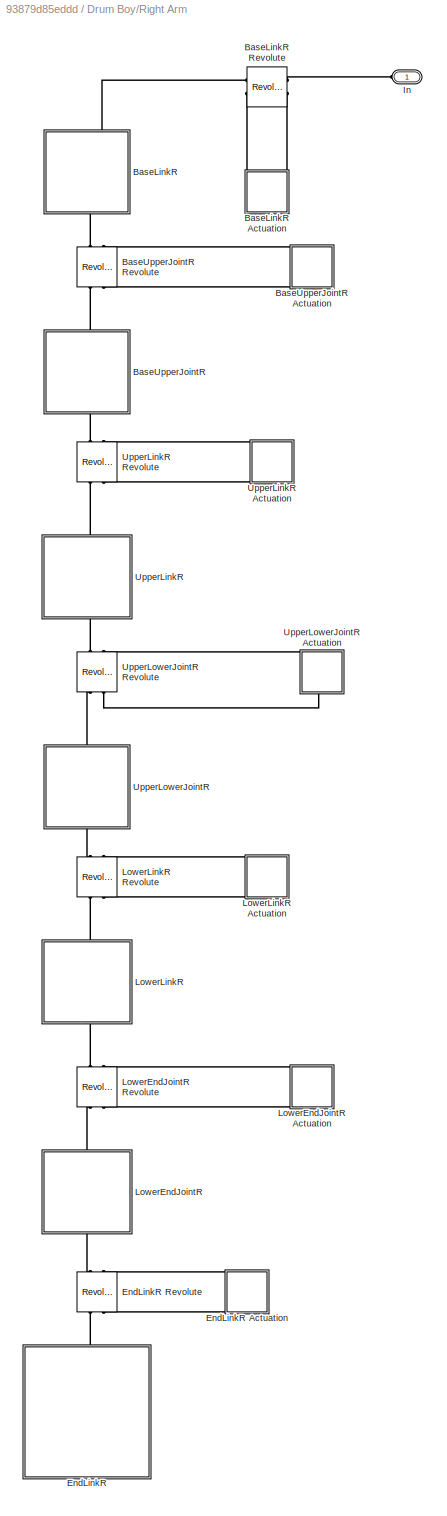
BLOCK [SubSystem] Drum Boy/Right Arm
  NameLocation = top
  Ports = [0, 0, 0, 0, 0, 1]
  RequestExecContextInheritance = off
BLOCK [SubSystem] Drum Boy/Right Arm/BaseLinkR
  NameLocation = right
  Ports = [0, 0, 0, 0, 0, 1, 1]
  RequestExecContextInheritance = off
BLOCK [SubSystem] Drum Boy/Right Arm/BaseLinkR Actuation
  NameLocation = top
  Ports = [0, 0, 0, 0, 0, 1, 1]
  RequestExecContextInheritance = off
BLOCK [FromWorkspace] Drum Boy/Right Arm/BaseLinkR Actuation/Acceleration
  NameLocation = top
  SampleTime = T
  VariableName = d2q2
BLOCK [Reference] Drum Boy/Right Arm/BaseLinkR Actuation/PS-Simulink Converter  REF=nesl_utility/PS-Simulink
Converter
  Ports = [0, 1, 0, 0, 0, 1]
  SourceBlock = nesl_utility/PS-Simulink\nConverter
  SourceProductBaseCode = PW,SS
  SourceType = PS-Simulink\nConverter
BLOCK [FromWorkspace] Drum Boy/Right Arm/BaseLinkR Actuation/Positon
  NameLocation = top
  SampleTime = T
  VariableName = q2
BLOCK [Reference] Drum Boy/Right Arm/BaseLinkR Actuation/Simulink-PS Converter1  REF=nesl_utility/Simulink-PS
Converter
  NameLocation = top
  Ports = [3, 0, 0, 0, 0, 0, 1]
  SourceBlock = nesl_utility/Simulink-PS\nConverter
  SourceProductName = Utilities
  SourceType = Simulink-PS\nConverter
BLOCK [ToWorkspace] Drum Boy/Right Arm/BaseLinkR Actuation/To Workspace
  FixptAsFi = on
  MaxDataPoints = inf
  Ports = [1]
  SampleTime = T
  Save2DSignal = 2-D array (concatenate along first dimension)
  VariableName = tau2
BLOCK [FromWorkspace] Drum Boy/Right Arm/BaseLinkR Actuation/Velocity
  NameLocation = top
  SampleTime = T
  VariableName = dq2
BLOCK [PMIOPort] Drum Boy/Right Arm/BaseLinkR Actuation/pos
  NameLocation = top
  Side = Right
BLOCK [PMIOPort] Drum Boy/Right Arm/BaseLinkR Actuation/tau
  Port = 2
  Side = Left
BLOCK [Reference] Drum Boy/Right Arm/BaseLinkR Revolute  REF=sm_lib/Joints/Revolute Joint
  Ports = [0, 0, 0, 0, 0, 2, 2]
  SourceBlock = sm_lib/Joints/Revolute Joint
  SourceProductName = Multibody
  SourceType = Revolute Joint
BLOCK [PMIOPort] Drum Boy/Right Arm/BaseLinkR/B
  NameLocation = top
  Side = Left
BLOCK [Reference] Drum Boy/Right Arm/BaseLinkR/Base Transform  REF=sm_lib/Frames and
Transforms/Rigid
Transform
  NameLocation = top
  Ports = [0, 0, 0, 0, 0, 1, 1]
  SourceBlock = sm_lib/Frames and\nTransforms/Rigid\nTransform
  SourceProductName = Multibody
  SourceType = Rigid\nTransform
BLOCK [PMIOPort] Drum Boy/Right Arm/BaseLinkR/F
  NameLocation = top
  Port = 2
  Side = Right
BLOCK [Reference] Drum Boy/Right Arm/BaseLinkR/Follower Transform  REF=sm_lib/Frames and
Transforms/Rigid
Transform
  NameLocation = top
  Ports = [0, 0, 0, 0, 0, 1, 1]
  SourceBlock = sm_lib/Frames and\nTransforms/Rigid\nTransform
  SourceProductName = Multibody
  SourceType = Rigid\nTransform
BLOCK [Reference] Drum Boy/Right Arm/BaseLinkR/Solid  REF=sm_lib/Body Elements/File Solid
  NameLocation = left
  Ports = [0, 0, 0, 0, 0, 1]
  SourceBlock = sm_lib/Body Elements/File Solid
  SourceProductName = Multibody
  SourceType = File Solid
BLOCK [SubSystem] Drum Boy/Right Arm/BaseUpperJointR
  NameLocation = right
  Ports = [0, 0, 0, 0, 0, 1, 1]
  RequestExecContextInheritance = off
BLOCK [SubSystem] Drum Boy/Right Arm/BaseUpperJointR Actuation
  NameLocation = left
  Ports = [0, 0, 0, 0, 0, 1, 1]
  RequestExecContextInheritance = off
BLOCK [FromWorkspace] Drum Boy/Right Arm/BaseUpperJointR Actuation/Acceleration
  NameLocation = top
  SampleTime = T
  VariableName = d2q3
BLOCK [Reference] Drum Boy/Right Arm/BaseUpperJointR Actuation/PS-Simulink Converter  REF=nesl_utility/PS-Simulink
Converter
  Ports = [0, 1, 0, 0, 0, 1]
  SourceBlock = nesl_utility/PS-Simulink\nConverter
  SourceProductBaseCode = PW,SS
  SourceType = PS-Simulink\nConverter
BLOCK [FromWorkspace] Drum Boy/Right Arm/BaseUpperJointR Actuation/Positon
  NameLocation = top
  SampleTime = T
  VariableName = q3
BLOCK [Reference] Drum Boy/Right Arm/BaseUpperJointR Actuation/Simulink-PS Converter1  REF=nesl_utility/Simulink-PS
Converter
  NameLocation = top
  Ports = [3, 0, 0, 0, 0, 0, 1]
  SourceBlock = nesl_utility/Simulink-PS\nConverter
  SourceProductName = Utilities
  SourceType = Simulink-PS\nConverter
BLOCK [ToWorkspace] Drum Boy/Right Arm/BaseUpperJointR Actuation/To Workspace
  FixptAsFi = on
  MaxDataPoints = inf
  Ports = [1]
  SampleTime = T
  Save2DSignal = 2-D array (concatenate along first dimension)
  VariableName = tau3
BLOCK [FromWorkspace] Drum Boy/Right Arm/BaseUpperJointR Actuation/Velocity
  NameLocation = top
  SampleTime = T
  VariableName = dq3
BLOCK [PMIOPort] Drum Boy/Right Arm/BaseUpperJointR Actuation/pos
  NameLocation = top
  Side = Right
BLOCK [PMIOPort] Drum Boy/Right Arm/BaseUpperJointR Actuation/tau
  Port = 2
  Side = Left
BLOCK [Reference] Drum Boy/Right Arm/BaseUpperJointR Revolute  REF=sm_lib/Joints/Revolute Joint
  NameLocation = right
  Ports = [0, 0, 0, 0, 0, 2, 2]
  SourceBlock = sm_lib/Joints/Revolute Joint
  SourceProductName = Multibody
  SourceType = Revolute Joint
BLOCK [PMIOPort] Drum Boy/Right Arm/BaseUpperJointR/B
  NameLocation = top
  Side = Left
BLOCK [Reference] Drum Boy/Right Arm/BaseUpperJointR/Base Transform  REF=sm_lib/Frames and
Transforms/Rigid
Transform
  NameLocation = top
  Ports = [0, 0, 0, 0, 0, 1, 1]
  SourceBlock = sm_lib/Frames and\nTransforms/Rigid\nTransform
  SourceProductName = Multibody
  SourceType = Rigid\nTransform
BLOCK [PMIOPort] Drum Boy/Right Arm/BaseUpperJointR/F
  NameLocation = top
  Port = 2
  Side = Right
BLOCK [Reference] Drum Boy/Right Arm/BaseUpperJointR/Follower Transform  REF=sm_lib/Frames and
Transforms/Rigid
Transform
  NameLocation = top
  Ports = [0, 0, 0, 0, 0, 1, 1]
  SourceBlock = sm_lib/Frames and\nTransforms/Rigid\nTransform
  SourceProductName = Multibody
  SourceType = Rigid\nTransform
BLOCK [Reference] Drum Boy/Right Arm/BaseUpperJointR/Solid  REF=sm_lib/Body Elements/File Solid
  NameLocation = left
  Ports = [0, 0, 0, 0, 0, 1]
  SourceBlock = sm_lib/Body Elements/File Solid
  SourceProductName = Multibody
  SourceType = File Solid
BLOCK [SubSystem] Drum Boy/Right Arm/EndLinkR
  NameLocation = right
  Ports = [0, 0, 0, 0, 0, 1]
  RequestExecContextInheritance = off
BLOCK [SubSystem] Drum Boy/Right Arm/EndLinkR Actuation
  NameLocation = left
  Ports = [0, 0, 0, 0, 0, 1, 1]
  RequestExecContextInheritance = off
BLOCK [FromWorkspace] Drum Boy/Right Arm/EndLinkR Actuation/Acceleration
  NameLocation = top
  SampleTime = T
  VariableName = d2q8
BLOCK [Reference] Drum Boy/Right Arm/EndLinkR Actuation/PS-Simulink Converter  REF=nesl_utility/PS-Simulink
Converter
  Ports = [0, 1, 0, 0, 0, 1]
  SourceBlock = nesl_utility/PS-Simulink\nConverter
  SourceProductBaseCode = PW,SS
  SourceType = PS-Simulink\nConverter
BLOCK [FromWorkspace] Drum Boy/Right Arm/EndLinkR Actuation/Positon
  NameLocation = top
  SampleTime = T
  VariableName = q8
BLOCK [Reference] Drum Boy/Right Arm/EndLinkR Actuation/Simulink-PS Converter1  REF=nesl_utility/Simulink-PS
Converter
  NameLocation = top
  Ports = [3, 0, 0, 0, 0, 0, 1]
  SourceBlock = nesl_utility/Simulink-PS\nConverter
  SourceProductName = Utilities
  SourceType = Simulink-PS\nConverter
BLOCK [ToWorkspace] Drum Boy/Right Arm/EndLinkR Actuation/To Workspace
  FixptAsFi = on
  MaxDataPoints = inf
  Ports = [1]
  SampleTime = T
  Save2DSignal = 2-D array (concatenate along first dimension)
  VariableName = tau8
BLOCK [FromWorkspace] Drum Boy/Right Arm/EndLinkR Actuation/Velocity
  NameLocation = top
  SampleTime = T
  VariableName = dq8
BLOCK [PMIOPort] Drum Boy/Right Arm/EndLinkR Actuation/pos
  NameLocation = top
  Side = Right
BLOCK [PMIOPort] Drum Boy/Right Arm/EndLinkR Actuation/tau
  Port = 2
  Side = Left
BLOCK [Reference] Drum Boy/Right Arm/EndLinkR Revolute  REF=sm_lib/Joints/Revolute Joint
  NameLocation = right
  Ports = [0, 0, 0, 0, 0, 2, 2]
  SourceBlock = sm_lib/Joints/Revolute Joint
  SourceProductName = Multibody
  SourceType = Revolute Joint
BLOCK [PMIOPort] Drum Boy/Right Arm/EndLinkR/B
  NameLocation = top
  Side = Left
BLOCK [Reference] Drum Boy/Right Arm/EndLinkR/Base Transform  REF=sm_lib/Frames and
Transforms/Rigid
Transform
  NameLocation = top
  Ports = [0, 0, 0, 0, 0, 1, 1]
  SourceBlock = sm_lib/Frames and\nTransforms/Rigid\nTransform
  SourceProductName = Multibody
  SourceType = Rigid\nTransform
BLOCK [Reference] Drum Boy/Right Arm/EndLinkR/Solid  REF=sm_lib/Body Elements/File Solid
  NameLocation = left
  Ports = [0, 0, 0, 0, 0, 1]
  SourceBlock = sm_lib/Body Elements/File Solid
  SourceProductName = Multibody
  SourceType = File Solid
BLOCK [PMIOPort] Drum Boy/Right Arm/In
  NameLocation = top
  Side = Left
BLOCK [SubSystem] Drum Boy/Right Arm/LowerEndJointR
  NameLocation = right
  Ports = [0, 0, 0, 0, 0, 1, 1]
  RequestExecContextInheritance = off
BLOCK [SubSystem] Drum Boy/Right Arm/LowerEndJointR Actuation
  NameLocation = left
  Ports = [0, 0, 0, 0, 0, 1, 1]
  RequestExecContextInheritance = off
BLOCK [FromWorkspace] Drum Boy/Right Arm/LowerEndJointR Actuation/Acceleration
  NameLocation = top
  SampleTime = T
  VariableName = d2q7
BLOCK [Reference] Drum Boy/Right Arm/LowerEndJointR Actuation/PS-Simulink Converter  REF=nesl_utility/PS-Simulink
Converter
  Ports = [0, 1, 0, 0, 0, 1]
  SourceBlock = nesl_utility/PS-Simulink\nConverter
  SourceProductBaseCode = PW,SS
  SourceType = PS-Simulink\nConverter
BLOCK [FromWorkspace] Drum Boy/Right Arm/LowerEndJointR Actuation/Positon
  NameLocation = top
  SampleTime = T
  VariableName = q7
BLOCK [Reference] Drum Boy/Right Arm/LowerEndJointR Actuation/Simulink-PS Converter1  REF=nesl_utility/Simulink-PS
Converter
  NameLocation = top
  Ports = [3, 0, 0, 0, 0, 0, 1]
  SourceBlock = nesl_utility/Simulink-PS\nConverter
  SourceProductName = Utilities
  SourceType = Simulink-PS\nConverter
BLOCK [ToWorkspace] Drum Boy/Right Arm/LowerEndJointR Actuation/To Workspace
  FixptAsFi = on
  MaxDataPoints = inf
  Ports = [1]
  SampleTime = T
  Save2DSignal = 2-D array (concatenate along first dimension)
  VariableName = tau7
BLOCK [FromWorkspace] Drum Boy/Right Arm/LowerEndJointR Actuation/Velocity
  NameLocation = top
  SampleTime = T
  VariableName = dq7
BLOCK [PMIOPort] Drum Boy/Right Arm/LowerEndJointR Actuation/pos
  NameLocation = top
  Side = Right
BLOCK [PMIOPort] Drum Boy/Right Arm/LowerEndJointR Actuation/tau
  Port = 2
  Side = Left
BLOCK [Reference] Drum Boy/Right Arm/LowerEndJointR Revolute  REF=sm_lib/Joints/Revolute Joint
  NameLocation = right
  Ports = [0, 0, 0, 0, 0, 2, 2]
  SourceBlock = sm_lib/Joints/Revolute Joint
  SourceProductName = Multibody
  SourceType = Revolute Joint
BLOCK [PMIOPort] Drum Boy/Right Arm/LowerEndJointR/B
  NameLocation = top
  Side = Left
BLOCK [Reference] Drum Boy/Right Arm/LowerEndJointR/Base Transform  REF=sm_lib/Frames and
Transforms/Rigid
Transform
  NameLocation = top
  Ports = [0, 0, 0, 0, 0, 1, 1]
  SourceBlock = sm_lib/Frames and\nTransforms/Rigid\nTransform
  SourceProductName = Multibody
  SourceType = Rigid\nTransform
BLOCK [PMIOPort] Drum Boy/Right Arm/LowerEndJointR/F
  NameLocation = top
  Port = 2
  Side = Right
BLOCK [Reference] Drum Boy/Right Arm/LowerEndJointR/Follower Transform  REF=sm_lib/Frames and
Transforms/Rigid
Transform
  NameLocation = top
  Ports = [0, 0, 0, 0, 0, 1, 1]
  SourceBlock = sm_lib/Frames and\nTransforms/Rigid\nTransform
  SourceProductName = Multibody
  SourceType = Rigid\nTransform
BLOCK [Reference] Drum Boy/Right Arm/LowerEndJointR/Solid  REF=sm_lib/Body Elements/File Solid
  NameLocation = left
  Ports = [0, 0, 0, 0, 0, 1]
  SourceBlock = sm_lib/Body Elements/File Solid
  SourceProductName = Multibody
  SourceType = File Solid
BLOCK [SubSystem] Drum Boy/Right Arm/LowerLinkR
  NameLocation = right
  Ports = [0, 0, 0, 0, 0, 1, 1]
  RequestExecContextInheritance = off
BLOCK [SubSystem] Drum Boy/Right Arm/LowerLinkR Actuation
  NameLocation = left
  Ports = [0, 0, 0, 0, 0, 1, 1]
  RequestExecContextInheritance = off
BLOCK [FromWorkspace] Drum Boy/Right Arm/LowerLinkR Actuation/Acceleration
  NameLocation = top
  SampleTime = T
  VariableName = d2q6
BLOCK [Reference] Drum Boy/Right Arm/LowerLinkR Actuation/PS-Simulink Converter  REF=nesl_utility/PS-Simulink
Converter
  Ports = [0, 1, 0, 0, 0, 1]
  SourceBlock = nesl_utility/PS-Simulink\nConverter
  SourceProductBaseCode = PW,SS
  SourceType = PS-Simulink\nConverter
BLOCK [FromWorkspace] Drum Boy/Right Arm/LowerLinkR Actuation/Positon
  NameLocation = top
  SampleTime = T
  VariableName = q6
BLOCK [Reference] Drum Boy/Right Arm/LowerLinkR Actuation/Simulink-PS Converter1  REF=nesl_utility/Simulink-PS
Converter
  NameLocation = top
  Ports = [3, 0, 0, 0, 0, 0, 1]
  SourceBlock = nesl_utility/Simulink-PS\nConverter
  SourceProductName = Utilities
  SourceType = Simulink-PS\nConverter
BLOCK [ToWorkspace] Drum Boy/Right Arm/LowerLinkR Actuation/To Workspace
  FixptAsFi = on
  MaxDataPoints = inf
  Ports = [1]
  SampleTime = T
  Save2DSignal = 2-D array (concatenate along first dimension)
  VariableName = tau6
BLOCK [FromWorkspace] Drum Boy/Right Arm/LowerLinkR Actuation/Velocity
  NameLocation = top
  SampleTime = T
  VariableName = dq6
BLOCK [PMIOPort] Drum Boy/Right Arm/LowerLinkR Actuation/pos
  NameLocation = top
  Side = Right
BLOCK [PMIOPort] Drum Boy/Right Arm/LowerLinkR Actuation/tau
  Port = 2
  Side = Left
BLOCK [Reference] Drum Boy/Right Arm/LowerLinkR Revolute  REF=sm_lib/Joints/Revolute Joint
  NameLocation = right
  Ports = [0, 0, 0, 0, 0, 2, 2]
  SourceBlock = sm_lib/Joints/Revolute Joint
  SourceProductName = Multibody
  SourceType = Revolute Joint
BLOCK [PMIOPort] Drum Boy/Right Arm/LowerLinkR/B
  NameLocation = top
  Side = Left
BLOCK [Reference] Drum Boy/Right Arm/LowerLinkR/Base Transform  REF=sm_lib/Frames and
Transforms/Rigid
Transform
  NameLocation = top
  Ports = [0, 0, 0, 0, 0, 1, 1]
  SourceBlock = sm_lib/Frames and\nTransforms/Rigid\nTransform
  SourceProductName = Multibody
  SourceType = Rigid\nTransform
BLOCK [PMIOPort] Drum Boy/Right Arm/LowerLinkR/F
  NameLocation = top
  Port = 2
  Side = Right
BLOCK [Reference] Drum Boy/Right Arm/LowerLinkR/Follower Transform  REF=sm_lib/Frames and
Transforms/Rigid
Transform
  NameLocation = top
  Ports = [0, 0, 0, 0, 0, 1, 1]
  SourceBlock = sm_lib/Frames and\nTransforms/Rigid\nTransform
  SourceProductName = Multibody
  SourceType = Rigid\nTransform
BLOCK [Reference] Drum Boy/Right Arm/LowerLinkR/Solid  REF=sm_lib/Body Elements/File Solid
  NameLocation = left
  Ports = [0, 0, 0, 0, 0, 1]
  SourceBlock = sm_lib/Body Elements/File Solid
  SourceProductName = Multibody
  SourceType = File Solid
BLOCK [SubSystem] Drum Boy/Right Arm/UpperLinkR
  NameLocation = right
  Ports = [0, 0, 0, 0, 0, 1, 1]
  RequestExecContextInheritance = off
BLOCK [SubSystem] Drum Boy/Right Arm/UpperLinkR Actuation
  NameLocation = left
  Ports = [0, 0, 0, 0, 0, 1, 1]
  RequestExecContextInheritance = off
BLOCK [FromWorkspace] Drum Boy/Right Arm/UpperLinkR Actuation/Acceleration
  NameLocation = top
  SampleTime = T
  VariableName = d2q4
BLOCK [Reference] Drum Boy/Right Arm/UpperLinkR Actuation/PS-Simulink Converter  REF=nesl_utility/PS-Simulink
Converter
  Ports = [0, 1, 0, 0, 0, 1]
  SourceBlock = nesl_utility/PS-Simulink\nConverter
  SourceProductBaseCode = PW,SS
  SourceType = PS-Simulink\nConverter
BLOCK [FromWorkspace] Drum Boy/Right Arm/UpperLinkR Actuation/Positon
  NameLocation = top
  SampleTime = T
  VariableName = q4
BLOCK [Reference] Drum Boy/Right Arm/UpperLinkR Actuation/Simulink-PS Converter1  REF=nesl_utility/Simulink-PS
Converter
  NameLocation = top
  Ports = [3, 0, 0, 0, 0, 0, 1]
  SourceBlock = nesl_utility/Simulink-PS\nConverter
  SourceProductName = Utilities
  SourceType = Simulink-PS\nConverter
BLOCK [ToWorkspace] Drum Boy/Right Arm/UpperLinkR Actuation/To Workspace
  FixptAsFi = on
  MaxDataPoints = inf
  Ports = [1]
  SampleTime = T
  Save2DSignal = 2-D array (concatenate along first dimension)
  VariableName = tau4
BLOCK [FromWorkspace] Drum Boy/Right Arm/UpperLinkR Actuation/Velocity
  NameLocation = top
  SampleTime = T
  VariableName = dq4
BLOCK [PMIOPort] Drum Boy/Right Arm/UpperLinkR Actuation/pos
  NameLocation = top
  Side = Right
BLOCK [PMIOPort] Drum Boy/Right Arm/UpperLinkR Actuation/tau
  Port = 2
  Side = Left
BLOCK [Reference] Drum Boy/Right Arm/UpperLinkR Revolute  REF=sm_lib/Joints/Revolute Joint
  NameLocation = right
  Ports = [0, 0, 0, 0, 0, 2, 2]
  SourceBlock = sm_lib/Joints/Revolute Joint
  SourceProductName = Multibody
  SourceType = Revolute Joint
BLOCK [PMIOPort] Drum Boy/Right Arm/UpperLinkR/B
  NameLocation = top
  Side = Left
BLOCK [Reference] Drum Boy/Right Arm/UpperLinkR/Base Transform  REF=sm_lib/Frames and
Transforms/Rigid
Transform
  NameLocation = top
  Ports = [0, 0, 0, 0, 0, 1, 1]
  SourceBlock = sm_lib/Frames and\nTransforms/Rigid\nTransform
  SourceProductName = Multibody
  SourceType = Rigid\nTransform
BLOCK [PMIOPort] Drum Boy/Right Arm/UpperLinkR/F
  NameLocation = top
  Port = 2
  Side = Right
BLOCK [Reference] Drum Boy/Right Arm/UpperLinkR/Follower Transform  REF=sm_lib/Frames and
Transforms/Rigid
Transform
  NameLocation = top
  Ports = [0, 0, 0, 0, 0, 1, 1]
  SourceBlock = sm_lib/Frames and\nTransforms/Rigid\nTransform
  SourceProductName = Multibody
  SourceType = Rigid\nTransform
BLOCK [Reference] Drum Boy/Right Arm/UpperLinkR/Solid  REF=sm_lib/Body Elements/File Solid
  NameLocation = left
  Ports = [0, 0, 0, 0, 0, 1]
  SourceBlock = sm_lib/Body Elements/File Solid
  SourceProductName = Multibody
  SourceType = File Solid
BLOCK [SubSystem] Drum Boy/Right Arm/UpperLowerJointR
  NameLocation = right
  Ports = [0, 0, 0, 0, 0, 1, 1]
  RequestExecContextInheritance = off
BLOCK [SubSystem] Drum Boy/Right Arm/UpperLowerJointR Actuation
  NameLocation = left
  Ports = [0, 0, 0, 0, 0, 1, 1]
  RequestExecContextInheritance = off
BLOCK [FromWorkspace] Drum Boy/Right Arm/UpperLowerJointR Actuation/Acceleration
  NameLocation = top
  SampleTime = T
  VariableName = d2q5
BLOCK [Reference] Drum Boy/Right Arm/UpperLowerJointR Actuation/PS-Simulink Converter  REF=nesl_utility/PS-Simulink
Converter
  Ports = [0, 1, 0, 0, 0, 1]
  SourceBlock = nesl_utility/PS-Simulink\nConverter
  SourceProductBaseCode = PW,SS
  SourceType = PS-Simulink\nConverter
BLOCK [FromWorkspace] Drum Boy/Right Arm/UpperLowerJointR Actuation/Positon
  NameLocation = top
  SampleTime = T
  VariableName = q5
BLOCK [Reference] Drum Boy/Right Arm/UpperLowerJointR Actuation/Simulink-PS Converter1  REF=nesl_utility/Simulink-PS
Converter
  NameLocation = top
  Ports = [3, 0, 0, 0, 0, 0, 1]
  SourceBlock = nesl_utility/Simulink-PS\nConverter
  SourceProductName = Utilities
  SourceType = Simulink-PS\nConverter
BLOCK [ToWorkspace] Drum Boy/Right Arm/UpperLowerJointR Actuation/To Workspace
  FixptAsFi = on
  MaxDataPoints = inf
  Ports = [1]
  SampleTime = T
  Save2DSignal = 2-D array (concatenate along first dimension)
  VariableName = tau5
BLOCK [FromWorkspace] Drum Boy/Right Arm/UpperLowerJointR Actuation/Velocity
  NameLocation = top
  SampleTime = T
  VariableName = dq5
BLOCK [PMIOPort] Drum Boy/Right Arm/UpperLowerJointR Actuation/pos
  NameLocation = top
  Side = Right
BLOCK [PMIOPort] Drum Boy/Right Arm/UpperLowerJointR Actuation/tau
  Port = 2
  Side = Left
BLOCK [Reference] Drum Boy/Right Arm/UpperLowerJointR Revolute  REF=sm_lib/Joints/Revolute Joint
  NameLocation = right
  Ports = [0, 0, 0, 0, 0, 2, 2]
  SourceBlock = sm_lib/Joints/Revolute Joint
  SourceProductName = Multibody
  SourceType = Revolute Joint
BLOCK [PMIOPort] Drum Boy/Right Arm/UpperLowerJointR/B
  NameLocation = top
  Side = Left
BLOCK [Reference] Drum Boy/Right Arm/UpperLowerJointR/Base Transform  REF=sm_lib/Frames and
Transforms/Rigid
Transform
  NameLocation = top
  Ports = [0, 0, 0, 0, 0, 1, 1]
  SourceBlock = sm_lib/Frames and\nTransforms/Rigid\nTransform
  SourceProductName = Multibody
  SourceType = Rigid\nTransform
BLOCK [PMIOPort] Drum Boy/Right Arm/UpperLowerJointR/F
  NameLocation = top
  Port = 2
  Side = Right
BLOCK [Reference] Drum Boy/Right Arm/UpperLowerJointR/Follower Transform  REF=sm_lib/Frames and
Transforms/Rigid
Transform
  NameLocation = top
  Ports = [0, 0, 0, 0, 0, 1, 1]
  SourceBlock = sm_lib/Frames and\nTransforms/Rigid\nTransform
  SourceProductName = Multibody
  SourceType = Rigid\nTransform
BLOCK [Reference] Drum Boy/Right Arm/UpperLowerJointR/Solid  REF=sm_lib/Body Elements/File Solid
  NameLocation = left
  Ports = [0, 0, 0, 0, 0, 1]
  SourceBlock = sm_lib/Body Elements/File Solid
  SourceProductName = Multibody
  SourceType = File Solid
BLOCK [Reference] Drum Boy/Spherical Joint  REF=sm_lib/Joints/Spherical
Joint
  NameLocation = right
  Ports = [0, 0, 0, 0, 0, 1, 4]
  SourceBlock = sm_lib/Joints/Spherical\nJoint
  SourceProductBaseCode = MS
  SourceType = Spherical\nJoint
BLOCK [SubSystem] Drum Boy/Vibration Sensing
  NameLocation = right
  Ports = [0, 0, 0, 0, 0, 3]
  RequestExecContextInheritance = off
BLOCK [Reference] Drum Boy/Vibration Sensing/PS-Simulink Converter  REF=nesl_utility/PS-Simulink
Converter
  Ports = [0, 1, 0, 0, 0, 1]
  SourceBlock = nesl_utility/PS-Simulink\nConverter
  SourceProductBaseCode = PW,SS
  SourceType = PS-Simulink\nConverter
BLOCK [Reference] Drum Boy/Vibration Sensing/PS-Simulink Converter1  REF=nesl_utility/PS-Simulink
Converter
  Ports = [0, 1, 0, 0, 0, 1]
  SourceBlock = nesl_utility/PS-Simulink\nConverter
  SourceProductBaseCode = PW,SS
  SourceType = PS-Simulink\nConverter
BLOCK [Reference] Drum Boy/Vibration Sensing/PS-Simulink Converter2  REF=nesl_utility/PS-Simulink
Converter
  Ports = [0, 1, 0, 0, 0, 1]
  SourceBlock = nesl_utility/PS-Simulink\nConverter
  SourceProductBaseCode = PW,SS
  SourceType = PS-Simulink\nConverter
BLOCK [ToWorkspace] Drum Boy/Vibration Sensing/To Workspace1
  FixptAsFi = on
  MaxDataPoints = inf
  Ports = [1]
  SampleTime = T
  Save2DSignal = 2-D array (concatenate along first dimension)
  VariableName = bx
BLOCK [ToWorkspace] Drum Boy/Vibration Sensing/To Workspace2
  FixptAsFi = on
  MaxDataPoints = inf
  Ports = [1]
  SampleTime = T
  Save2DSignal = 2-D array (concatenate along first dimension)
  VariableName = by
BLOCK [ToWorkspace] Drum Boy/Vibration Sensing/To Workspace3
  FixptAsFi = on
  MaxDataPoints = inf
  Ports = [1]
  SampleTime = T
  Save2DSignal = 2-D array (concatenate along first dimension)
  VariableName = bz
BLOCK [PMIOPort] Drum Boy/Vibration Sensing/x
  Port = 3
  Side = Left
BLOCK [PMIOPort] Drum Boy/Vibration Sensing/y
  Port = 2
  Side = Left
BLOCK [PMIOPort] Drum Boy/Vibration Sensing/z
  Side = Left
BLOCK [SubSystem] Drum Boy/Waist Actuation
  NameLocation = right
  Ports = [0, 0, 0, 0, 0, 1, 1]
  RequestExecContextInheritance = off
BLOCK [FromWorkspace] Drum Boy/Waist Actuation/Acceleration
  NameLocation = top
  SampleTime = T
  VariableName = d2q1
BLOCK [Reference] Drum Boy/Waist Actuation/PS-Simulink Converter  REF=nesl_utility/PS-Simulink
Converter
  Ports = [0, 1, 0, 0, 0, 1]
  SourceBlock = nesl_utility/PS-Simulink\nConverter
  SourceProductBaseCode = PW,SS
  SourceType = PS-Simulink\nConverter
BLOCK [FromWorkspace] Drum Boy/Waist Actuation/Positon
  NameLocation = top
  SampleTime = T
  VariableName = q1
BLOCK [Reference] Drum Boy/Waist Actuation/Simulink-PS Converter1  REF=nesl_utility/Simulink-PS
Converter
  NameLocation = top
  Ports = [3, 0, 0, 0, 0, 0, 1]
  SourceBlock = nesl_utility/Simulink-PS\nConverter
  SourceProductName = Utilities
  SourceType = Simulink-PS\nConverter
BLOCK [ToWorkspace] Drum Boy/Waist Actuation/To Workspace
  FixptAsFi = on
  MaxDataPoints = inf
  Ports = [1]
  SampleTime = T
  Save2DSignal = 2-D array (concatenate along first dimension)
  VariableName = tau1
BLOCK [FromWorkspace] Drum Boy/Waist Actuation/Velocity
  NameLocation = top
  SampleTime = T
  VariableName = dq1
BLOCK [PMIOPort] Drum Boy/Waist Actuation/pos
  NameLocation = top
  Side = Right
BLOCK [PMIOPort] Drum Boy/Waist Actuation/tau
  Port = 2
  Side = Left
BLOCK [Reference] Drum Boy/Waist Revolute  REF=sm_lib/Joints/Revolute Joint
  NameLocation = left
  Ports = [0, 0, 0, 0, 0, 2, 2]
  SourceBlock = sm_lib/Joints/Revolute Joint
  SourceProductName = Multibody
  SourceType = Revolute Joint
BLOCK [Reference] Drum Boy/Weld Joint1  REF=sm_lib/Joints/Weld Joint
  NameLocation = right
  Ports = [0, 0, 0, 0, 0, 1, 1]
  SourceBlock = sm_lib/Joints/Weld Joint
  SourceProductBaseCode = MS
  SourceType = Weld Joint
BLOCK [Reference] MechanismConfiguration  REF=sm_lib/Utilities/Mechanism
Configuration
  Ports = [0, 0, 0, 0, 0, 0, 1]
  SourceBlock = sm_lib/Utilities/Mechanism\nConfiguration
  SourceProductName = Multibody
  SourceType = Mechanism\nConfiguration
BLOCK [Reference] Solver Configuration  REF=nesl_utility/Solver
Configuration
  Ports = [0, 0, 0, 0, 0, 0, 1]
  SourceBlock = nesl_utility/Solver\nConfiguration
  SourceProductName = Utilities
  SourceType = Solver\nConfiguration
BLOCK [Reference] World  REF=sm_lib/Frames and
Transforms/World Frame
  Ports = [0, 0, 0, 0, 0, 0, 1]
  SourceBlock = sm_lib/Frames and\nTransforms/World Frame
  SourceProductName = Multibody
  SourceType = World Frame
ANNOTATION (root): Drum Boy Simulator
ANNOTATION (root): This Drum Boy simulator automatically computes the required torques for each joint given the desired joint trajectory. Through the simulator, also, the interference between the components can be checked.
LINE Drum Boy/BassPedal/FootBoard Actuation/Acceleration:1 -> Drum Boy/BassPedal/FootBoard Actuation/Simulink-PS Converter1:3
LINE Drum Boy/BassPedal/FootBoard Actuation/Positon:1 -> Drum Boy/BassPedal/FootBoard Actuation/Simulink-PS Converter1:1
LINE Drum Boy/BassPedal/FootBoard Actuation/Velocity:1 -> Drum Boy/BassPedal/FootBoard Actuation/Simulink-PS Converter1:2
LINE Drum Boy/BassPedal/FootR Actuation/Acceleration:1 -> Drum Boy/BassPedal/FootR Actuation/Simulink-PS Converter1:3
LINE Drum Boy/BassPedal/FootR Actuation/PS-Simulink Converter:1 -> Drum Boy/BassPedal/FootR Actuation/To Workspace:1
LINE Drum Boy/BassPedal/FootR Actuation/Positon:1 -> Drum Boy/BassPedal/FootR Actuation/Simulink-PS Converter1:1
LINE Drum Boy/BassPedal/FootR Actuation/Velocity:1 -> Drum Boy/BassPedal/FootR Actuation/Simulink-PS Converter1:2
LINE Drum Boy/Head/HeadLink Actuation/Acceleration:1 -> Drum Boy/Head/HeadLink Actuation/Simulink-PS Converter1:3
LINE Drum Boy/Head/HeadLink Actuation/PS-Simulink Converter:1 -> Drum Boy/Head/HeadLink Actuation/To Workspace:1
LINE Drum Boy/Head/HeadLink Actuation/Positon:1 -> Drum Boy/Head/HeadLink Actuation/Simulink-PS Converter1:1
LINE Drum Boy/Head/HeadLink Actuation/Velocity:1 -> Drum Boy/Head/HeadLink Actuation/Simulink-PS Converter1:2
LINE Drum Boy/Head/UpperLowerJoint Actuation/Acceleration:1 -> Drum Boy/Head/UpperLowerJoint Actuation/Simulink-PS Converter1:3
LINE Drum Boy/Head/UpperLowerJoint Actuation/PS-Simulink Converter:1 -> Drum Boy/Head/UpperLowerJoint Actuation/To Workspace:1
LINE Drum Boy/Head/UpperLowerJoint Actuation/Positon:1 -> Drum Boy/Head/UpperLowerJoint Actuation/Simulink-PS Converter1:1
LINE Drum Boy/Head/UpperLowerJoint Actuation/Velocity:1 -> Drum Boy/Head/UpperLowerJoint Actuation/Simulink-PS Converter1:2
LINE Drum Boy/HihatPedal/FootBoardHH Actuation/Acceleration:1 -> Drum Boy/HihatPedal/FootBoardHH Actuation/Simulink-PS Converter1:3
LINE Drum Boy/HihatPedal/FootBoardHH Actuation/Positon:1 -> Drum Boy/HihatPedal/FootBoardHH Actuation/Simulink-PS Converter1:1
LINE Drum Boy/HihatPedal/FootBoardHH Actuation/Velocity:1 -> Drum Boy/HihatPedal/FootBoardHH Actuation/Simulink-PS Converter1:2
LINE Drum Boy/HihatPedal/FootL Actuation/Acceleration:1 -> Drum Boy/HihatPedal/FootL Actuation/Simulink-PS Converter1:3
LINE Drum Boy/HihatPedal/FootL Actuation/PS-Simulink Converter:1 -> Drum Boy/HihatPedal/FootL Actuation/To Workspace:1
LINE Drum Boy/HihatPedal/FootL Actuation/Positon:1 -> Drum Boy/HihatPedal/FootL Actuation/Simulink-PS Converter1:1
LINE Drum Boy/HihatPedal/FootL Actuation/Velocity:1 -> Drum Boy/HihatPedal/FootL Actuation/Simulink-PS Converter1:2
LINE Drum Boy/Left Arm/BaseLinkL Actuation/Acceleration:1 -> Drum Boy/Left Arm/BaseLinkL Actuation/Simulink-PS Converter1:3
LINE Drum Boy/Left Arm/BaseLinkL Actuation/PS-Simulink Converter:1 -> Drum Boy/Left Arm/BaseLinkL Actuation/To Workspace:1
LINE Drum Boy/Left Arm/BaseLinkL Actuation/Positon:1 -> Drum Boy/Left Arm/BaseLinkL Actuation/Simulink-PS Converter1:1
LINE Drum Boy/Left Arm/BaseLinkL Actuation/Velocity:1 -> Drum Boy/Left Arm/BaseLinkL Actuation/Simulink-PS Converter1:2
LINE Drum Boy/Left Arm/BaseUpperJointL Actuation/Acceleration:1 -> Drum Boy/Left Arm/BaseUpperJointL Actuation/Simulink-PS Converter1:3
LINE Drum Boy/Left Arm/BaseUpperJointL Actuation/PS-Simulink Converter:1 -> Drum Boy/Left Arm/BaseUpperJointL Actuation/To Workspace:1
LINE Drum Boy/Left Arm/BaseUpperJointL Actuation/Positon:1 -> Drum Boy/Left Arm/BaseUpperJointL Actuation/Simulink-PS Converter1:1
LINE Drum Boy/Left Arm/BaseUpperJointL Actuation/Velocity:1 -> Drum Boy/Left Arm/BaseUpperJointL Actuation/Simulink-PS Converter1:2
LINE Drum Boy/Left Arm/EndLinkL Actuation/Acceleration:1 -> Drum Boy/Left Arm/EndLinkL Actuation/Simulink-PS Converter1:3
LINE Drum Boy/Left Arm/EndLinkL Actuation/PS-Simulink Converter:1 -> Drum Boy/Left Arm/EndLinkL Actuation/To Workspace:1
LINE Drum Boy/Left Arm/EndLinkL Actuation/Positon:1 -> Drum Boy/Left Arm/EndLinkL Actuation/Simulink-PS Converter1:1
LINE Drum Boy/Left Arm/EndLinkL Actuation/Velocity:1 -> Drum Boy/Left Arm/EndLinkL Actuation/Simulink-PS Converter1:2
LINE Drum Boy/Left Arm/LowerEndJointL Actuation/Acceleration:1 -> Drum Boy/Left Arm/LowerEndJointL Actuation/Simulink-PS Converter1:3
LINE Drum Boy/Left Arm/LowerEndJointL Actuation/PS-Simulink Converter:1 -> Drum Boy/Left Arm/LowerEndJointL Actuation/To Workspace:1
LINE Drum Boy/Left Arm/LowerEndJointL Actuation/Positon:1 -> Drum Boy/Left Arm/LowerEndJointL Actuation/Simulink-PS Converter1:1
LINE Drum Boy/Left Arm/LowerEndJointL Actuation/Velocity:1 -> Drum Boy/Left Arm/LowerEndJointL Actuation/Simulink-PS Converter1:2
LINE Drum Boy/Left Arm/LowerLinkL Actuation/Acceleration:1 -> Drum Boy/Left Arm/LowerLinkL Actuation/Simulink-PS Converter1:3
LINE Drum Boy/Left Arm/LowerLinkL Actuation/PS-Simulink Converter:1 -> Drum Boy/Left Arm/LowerLinkL Actuation/To Workspace:1
LINE Drum Boy/Left Arm/LowerLinkL Actuation/Positon:1 -> Drum Boy/Left Arm/LowerLinkL Actuation/Simulink-PS Converter1:1
LINE Drum Boy/Left Arm/LowerLinkL Actuation/Velocity:1 -> Drum Boy/Left Arm/LowerLinkL Actuation/Simulink-PS Converter1:2
LINE Drum Boy/Left Arm/UpperLinkL Actuation/Acceleration:1 -> Drum Boy/Left Arm/UpperLinkL Actuation/Simulink-PS Converter1:3
LINE Drum Boy/Left Arm/UpperLinkL Actuation/PS-Simulink Converter:1 -> Drum Boy/Left Arm/UpperLinkL Actuation/To Workspace:1
LINE Drum Boy/Left Arm/UpperLinkL Actuation/Positon:1 -> Drum Boy/Left Arm/UpperLinkL Actuation/Simulink-PS Converter1:1
LINE Drum Boy/Left Arm/UpperLinkL Actuation/Velocity:1 -> Drum Boy/Left Arm/UpperLinkL Actuation/Simulink-PS Converter1:2
LINE Drum Boy/Left Arm/UpperLowerJointL Actuation/Acceleration:1 -> Drum Boy/Left Arm/UpperLowerJointL Actuation/Simulink-PS Converter1:3
LINE Drum Boy/Left Arm/UpperLowerJointL Actuation/PS-Simulink Converter:1 -> Drum Boy/Left Arm/UpperLowerJointL Actuation/To Workspace:1
LINE Drum Boy/Left Arm/UpperLowerJointL Actuation/Positon:1 -> Drum Boy/Left Arm/UpperLowerJointL Actuation/Simulink-PS Converter1:1
LINE Drum Boy/Left Arm/UpperLowerJointL Actuation/Velocity:1 -> Drum Boy/Left Arm/UpperLowerJointL Actuation/Simulink-PS Converter1:2
LINE Drum Boy/Right Arm/BaseLinkR Actuation/Acceleration:1 -> Drum Boy/Right Arm/BaseLinkR Actuation/Simulink-PS Converter1:3
LINE Drum Boy/Right Arm/BaseLinkR Actuation/PS-Simulink Converter:1 -> Drum Boy/Right Arm/BaseLinkR Actuation/To Workspace:1
LINE Drum Boy/Right Arm/BaseLinkR Actuation/Positon:1 -> Drum Boy/Right Arm/BaseLinkR Actuation/Simulink-PS Converter1:1
LINE Drum Boy/Right Arm/BaseLinkR Actuation/Velocity:1 -> Drum Boy/Right Arm/BaseLinkR Actuation/Simulink-PS Converter1:2
LINE Drum Boy/Right Arm/BaseUpperJointR Actuation/Acceleration:1 -> Drum Boy/Right Arm/BaseUpperJointR Actuation/Simulink-PS Converter1:3
LINE Drum Boy/Right Arm/BaseUpperJointR Actuation/PS-Simulink Converter:1 -> Drum Boy/Right Arm/BaseUpperJointR Actuation/To Workspace:1
LINE Drum Boy/Right Arm/BaseUpperJointR Actuation/Positon:1 -> Drum Boy/Right Arm/BaseUpperJointR Actuation/Simulink-PS Converter1:1
LINE Drum Boy/Right Arm/BaseUpperJointR Actuation/Velocity:1 -> Drum Boy/Right Arm/BaseUpperJointR Actuation/Simulink-PS Converter1:2
LINE Drum Boy/Right Arm/EndLinkR Actuation/Acceleration:1 -> Drum Boy/Right Arm/EndLinkR Actuation/Simulink-PS Converter1:3
LINE Drum Boy/Right Arm/EndLinkR Actuation/PS-Simulink Converter:1 -> Drum Boy/Right Arm/EndLinkR Actuation/To Workspace:1
LINE Drum Boy/Right Arm/EndLinkR Actuation/Positon:1 -> Drum Boy/Right Arm/EndLinkR Actuation/Simulink-PS Converter1:1
LINE Drum Boy/Right Arm/EndLinkR Actuation/Velocity:1 -> Drum Boy/Right Arm/EndLinkR Actuation/Simulink-PS Converter1:2
LINE Drum Boy/Right Arm/LowerEndJointR Actuation/Acceleration:1 -> Drum Boy/Right Arm/LowerEndJointR Actuation/Simulink-PS Converter1:3
LINE Drum Boy/Right Arm/LowerEndJointR Actuation/PS-Simulink Converter:1 -> Drum Boy/Right Arm/LowerEndJointR Actuation/To Workspace:1
LINE Drum Boy/Right Arm/LowerEndJointR Actuation/Positon:1 -> Drum Boy/Right Arm/LowerEndJointR Actuation/Simulink-PS Converter1:1
LINE Drum Boy/Right Arm/LowerEndJointR Actuation/Velocity:1 -> Drum Boy/Right Arm/LowerEndJointR Actuation/Simulink-PS Converter1:2
LINE Drum Boy/Right Arm/LowerLinkR Actuation/Acceleration:1 -> Drum Boy/Right Arm/LowerLinkR Actuation/Simulink-PS Converter1:3
LINE Drum Boy/Right Arm/LowerLinkR Actuation/PS-Simulink Converter:1 -> Drum Boy/Right Arm/LowerLinkR Actuation/To Workspace:1
LINE Drum Boy/Right Arm/LowerLinkR Actuation/Positon:1 -> Drum Boy/Right Arm/LowerLinkR Actuation/Simulink-PS Converter1:1
LINE Drum Boy/Right Arm/LowerLinkR Actuation/Velocity:1 -> Drum Boy/Right Arm/LowerLinkR Actuation/Simulink-PS Converter1:2
LINE Drum Boy/Right Arm/UpperLinkR Actuation/Acceleration:1 -> Drum Boy/Right Arm/UpperLinkR Actuation/Simulink-PS Converter1:3
LINE Drum Boy/Right Arm/UpperLinkR Actuation/PS-Simulink Converter:1 -> Drum Boy/Right Arm/UpperLinkR Actuation/To Workspace:1
LINE Drum Boy/Right Arm/UpperLinkR Actuation/Positon:1 -> Drum Boy/Right Arm/UpperLinkR Actuation/Simulink-PS Converter1:1
LINE Drum Boy/Right Arm/UpperLinkR Actuation/Velocity:1 -> Drum Boy/Right Arm/UpperLinkR Actuation/Simulink-PS Converter1:2
LINE Drum Boy/Right Arm/UpperLowerJointR Actuation/Acceleration:1 -> Drum Boy/Right Arm/UpperLowerJointR Actuation/Simulink-PS Converter1:3
LINE Drum Boy/Right Arm/UpperLowerJointR Actuation/PS-Simulink Converter:1 -> Drum Boy/Right Arm/UpperLowerJointR Actuation/To Workspace:1
LINE Drum Boy/Right Arm/UpperLowerJointR Actuation/Positon:1 -> Drum Boy/Right Arm/UpperLowerJointR Actuation/Simulink-PS Converter1:1
LINE Drum Boy/Right Arm/UpperLowerJointR Actuation/Velocity:1 -> Drum Boy/Right Arm/UpperLowerJointR Actuation/Simulink-PS Converter1:2
LINE Drum Boy/Vibration Sensing/PS-Simulink Converter1:1 -> Drum Boy/Vibration Sensing/To Workspace2:1
LINE Drum Boy/Vibration Sensing/PS-Simulink Converter2:1 -> Drum Boy/Vibration Sensing/To Workspace3:1
LINE Drum Boy/Vibration Sensing/PS-Simulink Converter:1 -> Drum Boy/Vibration Sensing/To Workspace1:1
LINE Drum Boy/Waist Actuation/Acceleration:1 -> Drum Boy/Waist Actuation/Simulink-PS Converter1:3
LINE Drum Boy/Waist Actuation/PS-Simulink Converter:1 -> Drum Boy/Waist Actuation/To Workspace:1
LINE Drum Boy/Waist Actuation/Positon:1 -> Drum Boy/Waist Actuation/Simulink-PS Converter1:1
LINE Drum Boy/Waist Actuation/Velocity:1 -> Drum Boy/Waist Actuation/Simulink-PS Converter1:2
PLINE Drum Boy/B:RConn1 -- Drum Boy/DrumSet:LConn1
PLINE Drum Boy/Base/B:RConn1 -- Drum Boy/Base/Base Transform:RConn1
PNET net1: Drum Boy/Base/Base Transform:LConn1 -- Drum Boy/Base/Follower Transform:LConn1 -- Drum Boy/Base/Solid:LConn1
PLINE Drum Boy/Base/F:RConn1 -- Drum Boy/Base/Follower Transform:RConn1
PLINE Drum Boy/Base:LConn1 -- Drum Boy/Weld Joint1:RConn1
PLINE Drum Boy/Base:RConn1 -- Drum Boy/Spherical Joint:LConn1
PLINE Drum Boy/BassPedal/BassBeater Revolute:LConn1 -- Drum Boy/BassPedal/FootBoardLink:RConn1
PLINE Drum Boy/BassPedal/BassBeater Revolute:RConn1 -- Drum Boy/BassPedal/BassBeater:LConn2
PLINE Drum Boy/BassPedal/BassBeater/B1:RConn1 -- Drum Boy/BassPedal/BassBeater/Base Transform1:RConn1
PLINE Drum Boy/BassPedal/BassBeater/B:RConn1 -- Drum Boy/BassPedal/BassBeater/Base Transform:RConn1
PNET net2: Drum Boy/BassPedal/BassBeater/Base Transform1:LConn1 -- Drum Boy/BassPedal/BassBeater/Base Transform:LConn1 -- Drum Boy/BassPedal/BassBeater/Solid:LConn1
PLINE Drum Boy/BassPedal/BassBeater:LConn1 -- Drum Boy/BassPedal/BassPlate Revolute:RConn1
PLINE Drum Boy/BassPedal/BassPlate Revolute:LConn1 -- Drum Boy/BassPedal/BassPlate:RConn1
PLINE Drum Boy/BassPedal/BassPlate/B:RConn1 -- Drum Boy/BassPedal/BassPlate/Base Transform:RConn1
PNET net3: Drum Boy/BassPedal/BassPlate/Base Transform:LConn1 -- Drum Boy/BassPedal/BassPlate/Follower Transform1:LConn1 -- Drum Boy/BassPedal/BassPlate/Follower Transform:LConn1 -- Drum Boy/BassPedal/BassPlate/Solid:LConn1
PLINE Drum Boy/BassPedal/BassPlate/F1:RConn1 -- Drum Boy/BassPedal/BassPlate/Follower Transform1:RConn1
PLINE Drum Boy/BassPedal/BassPlate/F:RConn1 -- Drum Boy/BassPedal/BassPlate/Follower Transform:RConn1
PNET net4: Drum Boy/BassPedal/BassPlate:LConn1 -- Drum Boy/BassPedal/FootStatorR:LConn1 -- Drum Boy/BassPedal/Weld Joint3:RConn1
PLINE Drum Boy/BassPedal/BassPlate:RConn2 -- Drum Boy/BassPedal/FootBoard Revolute:LConn1
PLINE Drum Boy/BassPedal/FootBoard Actuation/Simulink-PS Converter1:RConn1 -- Drum Boy/BassPedal/FootBoard Actuation/pos:RConn1
PLINE Drum Boy/BassPedal/FootBoard Actuation:RConn1 -- Drum Boy/BassPedal/FootBoard Revolute:LConn2
PLINE Drum Boy/BassPedal/FootBoard Revolute:RConn1 -- Drum Boy/BassPedal/FootBoard:LConn1
PLINE Drum Boy/BassPedal/FootBoard/B:RConn1 -- Drum Boy/BassPedal/FootBoard/Base Transform:RConn1
PNET net5: Drum Boy/BassPedal/FootBoard/Base Transform:LConn1 -- Drum Boy/BassPedal/FootBoard/Follower Transform:LConn1 -- Drum Boy/BassPedal/FootBoard/Solid:LConn1
PLINE Drum Boy/BassPedal/FootBoard/F:RConn1 -- Drum Boy/BassPedal/FootBoard/Follower Transform:RConn1
PLINE Drum Boy/BassPedal/FootBoard:RConn1 -- Drum Boy/BassPedal/FootBoardLink Revolute:LConn1
PLINE Drum Boy/BassPedal/FootBoardLink Revolute:RConn1 -- Drum Boy/BassPedal/FootBoardLink:LConn1
PLINE Drum Boy/BassPedal/FootBoardLink/B:RConn1 -- Drum Boy/BassPedal/FootBoardLink/Base Transform:RConn1
PNET net6: Drum Boy/BassPedal/FootBoardLink/Base Transform:LConn1 -- Drum Boy/BassPedal/FootBoardLink/Follower Transform:LConn1 -- Drum Boy/BassPedal/FootBoardLink/Solid:LConn1
PLINE Drum Boy/BassPedal/FootBoardLink/F:RConn1 -- Drum Boy/BassPedal/FootBoardLink/Follower Transform:RConn1
PLINE Drum Boy/BassPedal/FootR Actuation/PS-Simulink Converter:LConn1 -- Drum Boy/BassPedal/FootR Actuation/tau:RConn1
PLINE Drum Boy/BassPedal/FootR Actuation/Simulink-PS Converter1:RConn1 -- Drum Boy/BassPedal/FootR Actuation/pos:RConn1
PLINE Drum Boy/BassPedal/FootR Actuation:LConn1 -- Drum Boy/BassPedal/FootR Revolute:RConn2
PLINE Drum Boy/BassPedal/FootR Actuation:RConn1 -- Drum Boy/BassPedal/FootR Revolute:LConn2
PLINE Drum Boy/BassPedal/FootR Revolute:LConn1 -- Drum Boy/BassPedal/FootStatorR:RConn1
PLINE Drum Boy/BassPedal/FootR Revolute:RConn1 -- Drum Boy/BassPedal/FootRotatorR:LConn1
PLINE Drum Boy/BassPedal/FootRotatorR/B:RConn1 -- Drum Boy/BassPedal/FootRotatorR/Base Transform:RConn1
PLINE Drum Boy/BassPedal/FootRotatorR/Base Transform:LConn1 -- Drum Boy/BassPedal/FootRotatorR/Solid:LConn1
PLINE Drum Boy/BassPedal/FootStatorR/B:RConn1 -- Drum Boy/BassPedal/FootStatorR/Base Transform:RConn1
PNET net7: Drum Boy/BassPedal/FootStatorR/Base Transform:LConn1 -- Drum Boy/BassPedal/FootStatorR/Follower Transform:LConn1 -- Drum Boy/BassPedal/FootStatorR/Solid:LConn1
PLINE Drum Boy/BassPedal/FootStatorR/F:RConn1 -- Drum Boy/BassPedal/FootStatorR/Follower Transform:RConn1
PLINE Drum Boy/BassPedal/In:RConn1 -- Drum Boy/BassPedal/Weld Joint3:LConn1
PNET net8: Drum Boy/BassPedal:LConn1 -- Drum Boy/DrumSet:RConn2 -- Drum Boy/HihatPedal:LConn1
PLINE Drum Boy/Body/B:RConn1 -- Drum Boy/Body/Base Transform:RConn1
PNET net9: Drum Boy/Body/Base Transform:LConn1 -- Drum Boy/Body/Follower Transform L:LConn1 -- Drum Boy/Body/Follower Transform M:LConn1 -- Drum Boy/Body/Follower Transform R:LConn1 -- Drum Boy/Body/Solid:LConn1
PLINE Drum Boy/Body/Follower Transform L:RConn1 -- Drum Boy/Body/L:RConn1
PLINE Drum Boy/Body/Follower Transform M:RConn1 -- Drum Boy/Body/M:RConn1
PLINE Drum Boy/Body/Follower Transform R:RConn1 -- Drum Boy/Body/R:RConn1
PLINE Drum Boy/Body:LConn1 -- Drum Boy/Waist Revolute:RConn1
PLINE Drum Boy/Body:RConn1 -- Drum Boy/Right Arm:LConn1
PLINE Drum Boy/Body:RConn2 -- Drum Boy/Head:LConn1
PLINE Drum Boy/Body:RConn3 -- Drum Boy/Left Arm:LConn1
PNET net10: Drum Boy/DrumSet/B:RConn1 -- Drum Boy/DrumSet/Follower Transform:LConn1 -- Drum Boy/DrumSet/Solid:LConn1
PLINE Drum Boy/DrumSet/F1:RConn1 -- Drum Boy/DrumSet/Follower Transform:RConn1
PLINE Drum Boy/DrumSet/F2:RConn1 -- Drum Boy/DrumSet/Follower Transform1:RConn1
PLINE Drum Boy/DrumSet/Follower Transform1:LConn1 -- Drum Boy/DrumSet/Solid:RConn1
PLINE Drum Boy/DrumSet:RConn1 -- Drum Boy/Weld Joint1:LConn1
PLINE Drum Boy/Head/HeadLink Actuation/PS-Simulink Converter:LConn1 -- Drum Boy/Head/HeadLink Actuation/tau:RConn1
PLINE Drum Boy/Head/HeadLink Actuation/Simulink-PS Converter1:RConn1 -- Drum Boy/Head/HeadLink Actuation/pos:RConn1
PLINE Drum Boy/Head/HeadLink Actuation:LConn1 -- Drum Boy/Head/HeadLink Revolute:RConn2
PLINE Drum Boy/Head/HeadLink Actuation:RConn1 -- Drum Boy/Head/HeadLink Revolute:LConn2
PLINE Drum Boy/Head/HeadLink Revolute:LConn1 -- Drum Boy/Head/UpperLowerJoint:RConn1
PLINE Drum Boy/Head/HeadLink Revolute:RConn1 -- Drum Boy/Head/HeadLink:LConn1
PLINE Drum Boy/Head/HeadLink/B:RConn1 -- Drum Boy/Head/HeadLink/Base Transform:RConn1
PLINE Drum Boy/Head/HeadLink/Base Transform:LConn1 -- Drum Boy/Head/HeadLink/Solid:LConn1
PLINE Drum Boy/Head/In:RConn1 -- Drum Boy/Head/Weld Joint:LConn1
PLINE Drum Boy/Head/NeckLink/B:RConn1 -- Drum Boy/Head/NeckLink/Base Transform:RConn1
PNET net11: Drum Boy/Head/NeckLink/Base Transform:LConn1 -- Drum Boy/Head/NeckLink/Follower Transform:LConn1 -- Drum Boy/Head/NeckLink/Solid:LConn1
PLINE Drum Boy/Head/NeckLink/F:RConn1 -- Drum Boy/Head/NeckLink/Follower Transform:RConn1
PLINE Drum Boy/Head/NeckLink:LConn1 -- Drum Boy/Head/Weld Joint:RConn1
PLINE Drum Boy/Head/NeckLink:RConn1 -- Drum Boy/Head/UpperLowerJoint Revolute:LConn1
PLINE Drum Boy/Head/UpperLowerJoint Actuation/PS-Simulink Converter:LConn1 -- Drum Boy/Head/UpperLowerJoint Actuation/tau:RConn1
PLINE Drum Boy/Head/UpperLowerJoint Actuation/Simulink-PS Converter1:RConn1 -- Drum Boy/Head/UpperLowerJoint Actuation/pos:RConn1
PLINE Drum Boy/Head/UpperLowerJoint Actuation:LConn1 -- Drum Boy/Head/UpperLowerJoint Revolute:RConn2
PLINE Drum Boy/Head/UpperLowerJoint Actuation:RConn1 -- Drum Boy/Head/UpperLowerJoint Revolute:LConn2
PLINE Drum Boy/Head/UpperLowerJoint Revolute:RConn1 -- Drum Boy/Head/UpperLowerJoint:LConn1
PLINE Drum Boy/Head/UpperLowerJoint/B:RConn1 -- Drum Boy/Head/UpperLowerJoint/Base Transform:RConn1
PNET net12: Drum Boy/Head/UpperLowerJoint/Base Transform:LConn1 -- Drum Boy/Head/UpperLowerJoint/Follower Transform:LConn1 -- Drum Boy/Head/UpperLowerJoint/Solid:LConn1
PLINE Drum Boy/Head/UpperLowerJoint/F:RConn1 -- Drum Boy/Head/UpperLowerJoint/Follower Transform:RConn1
PLINE Drum Boy/HihatPedal/FootBoardHH Actuation/Simulink-PS Converter1:RConn1 -- Drum Boy/HihatPedal/FootBoardHH Actuation/pos:RConn1
PLINE Drum Boy/HihatPedal/FootBoardHH Actuation:RConn1 -- Drum Boy/HihatPedal/FootBoardHH Revolute:LConn2
PLINE Drum Boy/HihatPedal/FootBoardHH Revolute:LConn1 -- Drum Boy/HihatPedal/HiHatPlate:RConn1
PLINE Drum Boy/HihatPedal/FootBoardHH Revolute:RConn1 -- Drum Boy/HihatPedal/FootBoardHH:LConn1
PLINE Drum Boy/HihatPedal/FootBoardHH/B:RConn1 -- Drum Boy/HihatPedal/FootBoardHH/Base Transform:RConn1
PLINE Drum Boy/HihatPedal/FootBoardHH/Base Transform:LConn1 -- Drum Boy/HihatPedal/FootBoardHH/Solid:LConn1
PLINE Drum Boy/HihatPedal/FootL Actuation/PS-Simulink Converter:LConn1 -- Drum Boy/HihatPedal/FootL Actuation/tau:RConn1
PLINE Drum Boy/HihatPedal/FootL Actuation/Simulink-PS Converter1:RConn1 -- Drum Boy/HihatPedal/FootL Actuation/pos:RConn1
PLINE Drum Boy/HihatPedal/FootL Actuation:LConn1 -- Drum Boy/HihatPedal/FootL Revolute:RConn2
PLINE Drum Boy/HihatPedal/FootL Actuation:RConn1 -- Drum Boy/HihatPedal/FootL Revolute:LConn2
PLINE Drum Boy/HihatPedal/FootL Revolute:LConn1 -- Drum Boy/HihatPedal/FootStatorL:RConn1
PLINE Drum Boy/HihatPedal/FootL Revolute:RConn1 -- Drum Boy/HihatPedal/FootRotatorL:LConn1
PLINE Drum Boy/HihatPedal/FootRotatorL/B:RConn1 -- Drum Boy/HihatPedal/FootRotatorL/Base Transform:RConn1
PLINE Drum Boy/HihatPedal/FootRotatorL/Base Transform:LConn1 -- Drum Boy/HihatPedal/FootRotatorL/Solid:LConn1
PLINE Drum Boy/HihatPedal/FootStatorL/B:RConn1 -- Drum Boy/HihatPedal/FootStatorL/Base Transform:RConn1
PNET net13: Drum Boy/HihatPedal/FootStatorL/Base Transform:LConn1 -- Drum Boy/HihatPedal/FootStatorL/Follower Transform:LConn1 -- Drum Boy/HihatPedal/FootStatorL/Solid:LConn1
PLINE Drum Boy/HihatPedal/FootStatorL/F:RConn1 -- Drum Boy/HihatPedal/FootStatorL/Follower Transform:RConn1
PNET net14: Drum Boy/HihatPedal/FootStatorL:LConn1 -- Drum Boy/HihatPedal/HiHatPlate:LConn1 -- Drum Boy/HihatPedal/Weld Joint2:RConn1
PLINE Drum Boy/HihatPedal/HiHatPlate/B:RConn1 -- Drum Boy/HihatPedal/HiHatPlate/Base Transform:RConn1
PNET net15: Drum Boy/HihatPedal/HiHatPlate/Base Transform:LConn1 -- Drum Boy/HihatPedal/HiHatPlate/Follower Transform:LConn1 -- Drum Boy/HihatPedal/HiHatPlate/Solid:LConn1
PLINE Drum Boy/HihatPedal/HiHatPlate/F:RConn1 -- Drum Boy/HihatPedal/HiHatPlate/Follower Transform:RConn1
PLINE Drum Boy/HihatPedal/In:RConn1 -- Drum Boy/HihatPedal/Weld Joint2:LConn1
PLINE Drum Boy/Left Arm/BaseLinkL Actuation/PS-Simulink Converter:LConn1 -- Drum Boy/Left Arm/BaseLinkL Actuation/tau:RConn1
PLINE Drum Boy/Left Arm/BaseLinkL Actuation/Simulink-PS Converter1:RConn1 -- Drum Boy/Left Arm/BaseLinkL Actuation/pos:RConn1
PLINE Drum Boy/Left Arm/BaseLinkL Actuation:LConn1 -- Drum Boy/Left Arm/BaseLinkL Revolute:RConn2
PLINE Drum Boy/Left Arm/BaseLinkL Actuation:RConn1 -- Drum Boy/Left Arm/BaseLinkL Revolute:LConn2
PLINE Drum Boy/Left Arm/BaseLinkL Revolute:LConn1 -- Drum Boy/Left Arm/In:RConn1
PLINE Drum Boy/Left Arm/BaseLinkL Revolute:RConn1 -- Drum Boy/Left Arm/BaseLinkL:LConn1
PLINE Drum Boy/Left Arm/BaseLinkL/B:RConn1 -- Drum Boy/Left Arm/BaseLinkL/Base Transform:RConn1
PNET net16: Drum Boy/Left Arm/BaseLinkL/Base Transform:LConn1 -- Drum Boy/Left Arm/BaseLinkL/Follower Transform:LConn1 -- Drum Boy/Left Arm/BaseLinkL/Solid:LConn1
PLINE Drum Boy/Left Arm/BaseLinkL/F:RConn1 -- Drum Boy/Left Arm/BaseLinkL/Follower Transform:RConn1
PLINE Drum Boy/Left Arm/BaseLinkL:RConn1 -- Drum Boy/Left Arm/BaseUpperJointL Revolute:LConn1
PLINE Drum Boy/Left Arm/BaseUpperJointL Actuation/PS-Simulink Converter:LConn1 -- Drum Boy/Left Arm/BaseUpperJointL Actuation/tau:RConn1
PLINE Drum Boy/Left Arm/BaseUpperJointL Actuation/Simulink-PS Converter1:RConn1 -- Drum Boy/Left Arm/BaseUpperJointL Actuation/pos:RConn1
PLINE Drum Boy/Left Arm/BaseUpperJointL Actuation:LConn1 -- Drum Boy/Left Arm/BaseUpperJointL Revolute:RConn2
PLINE Drum Boy/Left Arm/BaseUpperJointL Actuation:RConn1 -- Drum Boy/Left Arm/BaseUpperJointL Revolute:LConn2
PLINE Drum Boy/Left Arm/BaseUpperJointL Revolute:RConn1 -- Drum Boy/Left Arm/BaseUpperJointL:LConn1
PLINE Drum Boy/Left Arm/BaseUpperJointL/B:RConn1 -- Drum Boy/Left Arm/BaseUpperJointL/Base Transform:RConn1
PNET net17: Drum Boy/Left Arm/BaseUpperJointL/Base Transform:LConn1 -- Drum Boy/Left Arm/BaseUpperJointL/Follower Transform:LConn1 -- Drum Boy/Left Arm/BaseUpperJointL/Solid:LConn1
PLINE Drum Boy/Left Arm/BaseUpperJointL/F:RConn1 -- Drum Boy/Left Arm/BaseUpperJointL/Follower Transform:RConn1
PLINE Drum Boy/Left Arm/BaseUpperJointL:RConn1 -- Drum Boy/Left Arm/UpperLinkL Revolute:LConn1
PLINE Drum Boy/Left Arm/EndLinkL Actuation/PS-Simulink Converter:LConn1 -- Drum Boy/Left Arm/EndLinkL Actuation/tau:RConn1
PLINE Drum Boy/Left Arm/EndLinkL Actuation/Simulink-PS Converter1:RConn1 -- Drum Boy/Left Arm/EndLinkL Actuation/pos:RConn1
PLINE Drum Boy/Left Arm/EndLinkL Actuation:LConn1 -- Drum Boy/Left Arm/EndLinkL Revolute:RConn2
PLINE Drum Boy/Left Arm/EndLinkL Actuation:RConn1 -- Drum Boy/Left Arm/EndLinkL Revolute:LConn2
PLINE Drum Boy/Left Arm/EndLinkL Revolute:LConn1 -- Drum Boy/Left Arm/LowerEndJointL:RConn1
PLINE Drum Boy/Left Arm/EndLinkL Revolute:RConn1 -- Drum Boy/Left Arm/EndLinkL:LConn1
PLINE Drum Boy/Left Arm/EndLinkL/B:RConn1 -- Drum Boy/Left Arm/EndLinkL/Base Transform:RConn1
PLINE Drum Boy/Left Arm/EndLinkL/Base Transform:LConn1 -- Drum Boy/Left Arm/EndLinkL/Solid:LConn1
PLINE Drum Boy/Left Arm/LowerEndJointL Actuation/PS-Simulink Converter:LConn1 -- Drum Boy/Left Arm/LowerEndJointL Actuation/tau:RConn1
PLINE Drum Boy/Left Arm/LowerEndJointL Actuation/Simulink-PS Converter1:RConn1 -- Drum Boy/Left Arm/LowerEndJointL Actuation/pos:RConn1
PLINE Drum Boy/Left Arm/LowerEndJointL Actuation:LConn1 -- Drum Boy/Left Arm/LowerEndJointL Revolute:RConn2
PLINE Drum Boy/Left Arm/LowerEndJointL Actuation:RConn1 -- Drum Boy/Left Arm/LowerEndJointL Revolute:LConn2
PLINE Drum Boy/Left Arm/LowerEndJointL Revolute:LConn1 -- Drum Boy/Left Arm/LowerLinkL:RConn1
PLINE Drum Boy/Left Arm/LowerEndJointL Revolute:RConn1 -- Drum Boy/Left Arm/LowerEndJointL:LConn1
PLINE Drum Boy/Left Arm/LowerEndJointL/B:RConn1 -- Drum Boy/Left Arm/LowerEndJointL/Base Transform:RConn1
PNET net18: Drum Boy/Left Arm/LowerEndJointL/Base Transform:LConn1 -- Drum Boy/Left Arm/LowerEndJointL/Follower Transform:LConn1 -- Drum Boy/Left Arm/LowerEndJointL/Solid:LConn1
PLINE Drum Boy/Left Arm/LowerEndJointL/F:RConn1 -- Drum Boy/Left Arm/LowerEndJointL/Follower Transform:RConn1
PLINE Drum Boy/Left Arm/LowerLinkL Actuation/PS-Simulink Converter:LConn1 -- Drum Boy/Left Arm/LowerLinkL Actuation/tau:RConn1
PLINE Drum Boy/Left Arm/LowerLinkL Actuation/Simulink-PS Converter1:RConn1 -- Drum Boy/Left Arm/LowerLinkL Actuation/pos:RConn1
PLINE Drum Boy/Left Arm/LowerLinkL Actuation:LConn1 -- Drum Boy/Left Arm/LowerLinkL Revolute:RConn2
PLINE Drum Boy/Left Arm/LowerLinkL Actuation:RConn1 -- Drum Boy/Left Arm/LowerLinkL Revolute:LConn2
PLINE Drum Boy/Left Arm/LowerLinkL Revolute:LConn1 -- Drum Boy/Left Arm/UpperLowerJointL:RConn1
PLINE Drum Boy/Left Arm/LowerLinkL Revolute:RConn1 -- Drum Boy/Left Arm/LowerLinkL:LConn1
PLINE Drum Boy/Left Arm/LowerLinkL/B:RConn1 -- Drum Boy/Left Arm/LowerLinkL/Base Transform:RConn1
PNET net19: Drum Boy/Left Arm/LowerLinkL/Base Transform:LConn1 -- Drum Boy/Left Arm/LowerLinkL/Follower Transform:LConn1 -- Drum Boy/Left Arm/LowerLinkL/Solid:LConn1
PLINE Drum Boy/Left Arm/LowerLinkL/F:RConn1 -- Drum Boy/Left Arm/LowerLinkL/Follower Transform:RConn1
PLINE Drum Boy/Left Arm/UpperLinkL Actuation/PS-Simulink Converter:LConn1 -- Drum Boy/Left Arm/UpperLinkL Actuation/tau:RConn1
PLINE Drum Boy/Left Arm/UpperLinkL Actuation/Simulink-PS Converter1:RConn1 -- Drum Boy/Left Arm/UpperLinkL Actuation/pos:RConn1
PLINE Drum Boy/Left Arm/UpperLinkL Actuation:LConn1 -- Drum Boy/Left Arm/UpperLinkL Revolute:RConn2
PLINE Drum Boy/Left Arm/UpperLinkL Actuation:RConn1 -- Drum Boy/Left Arm/UpperLinkL Revolute:LConn2
PLINE Drum Boy/Left Arm/UpperLinkL Revolute:RConn1 -- Drum Boy/Left Arm/UpperLinkL:LConn1
PLINE Drum Boy/Left Arm/UpperLinkL/B:RConn1 -- Drum Boy/Left Arm/UpperLinkL/Base Transform:RConn1
PNET net20: Drum Boy/Left Arm/UpperLinkL/Base Transform:LConn1 -- Drum Boy/Left Arm/UpperLinkL/Follower Transform:LConn1 -- Drum Boy/Left Arm/UpperLinkL/Solid:LConn1
PLINE Drum Boy/Left Arm/UpperLinkL/F:RConn1 -- Drum Boy/Left Arm/UpperLinkL/Follower Transform:RConn1
PLINE Drum Boy/Left Arm/UpperLinkL:RConn1 -- Drum Boy/Left Arm/UpperLowerJointL Revolute:LConn1
PLINE Drum Boy/Left Arm/UpperLowerJointL Actuation/PS-Simulink Converter:LConn1 -- Drum Boy/Left Arm/UpperLowerJointL Actuation/tau:RConn1
PLINE Drum Boy/Left Arm/UpperLowerJointL Actuation/Simulink-PS Converter1:RConn1 -- Drum Boy/Left Arm/UpperLowerJointL Actuation/pos:RConn1
PLINE Drum Boy/Left Arm/UpperLowerJointL Actuation:LConn1 -- Drum Boy/Left Arm/UpperLowerJointL Revolute:RConn2
PLINE Drum Boy/Left Arm/UpperLowerJointL Actuation:RConn1 -- Drum Boy/Left Arm/UpperLowerJointL Revolute:LConn2
PLINE Drum Boy/Left Arm/UpperLowerJointL Revolute:RConn1 -- Drum Boy/Left Arm/UpperLowerJointL:LConn1
PLINE Drum Boy/Left Arm/UpperLowerJointL/B:RConn1 -- Drum Boy/Left Arm/UpperLowerJointL/Base Transform:RConn1
PNET net21: Drum Boy/Left Arm/UpperLowerJointL/Base Transform:LConn1 -- Drum Boy/Left Arm/UpperLowerJointL/Follower Transform:LConn1 -- Drum Boy/Left Arm/UpperLowerJointL/Solid:LConn1
PLINE Drum Boy/Left Arm/UpperLowerJointL/F:RConn1 -- Drum Boy/Left Arm/UpperLowerJointL/Follower Transform:RConn1
PLINE Drum Boy/Right Arm/BaseLinkR Actuation/PS-Simulink Converter:LConn1 -- Drum Boy/Right Arm/BaseLinkR Actuation/tau:RConn1
PLINE Drum Boy/Right Arm/BaseLinkR Actuation/Simulink-PS Converter1:RConn1 -- Drum Boy/Right Arm/BaseLinkR Actuation/pos:RConn1
PLINE Drum Boy/Right Arm/BaseLinkR Actuation:LConn1 -- Drum Boy/Right Arm/BaseLinkR Revolute:RConn2
PLINE Drum Boy/Right Arm/BaseLinkR Actuation:RConn1 -- Drum Boy/Right Arm/BaseLinkR Revolute:LConn2
PLINE Drum Boy/Right Arm/BaseLinkR Revolute:LConn1 -- Drum Boy/Right Arm/In:RConn1
PLINE Drum Boy/Right Arm/BaseLinkR Revolute:RConn1 -- Drum Boy/Right Arm/BaseLinkR:LConn1
PLINE Drum Boy/Right Arm/BaseLinkR/B:RConn1 -- Drum Boy/Right Arm/BaseLinkR/Base Transform:RConn1
PNET net22: Drum Boy/Right Arm/BaseLinkR/Base Transform:LConn1 -- Drum Boy/Right Arm/BaseLinkR/Follower Transform:LConn1 -- Drum Boy/Right Arm/BaseLinkR/Solid:LConn1
PLINE Drum Boy/Right Arm/BaseLinkR/F:RConn1 -- Drum Boy/Right Arm/BaseLinkR/Follower Transform:RConn1
PLINE Drum Boy/Right Arm/BaseLinkR:RConn1 -- Drum Boy/Right Arm/BaseUpperJointR Revolute:LConn1
PLINE Drum Boy/Right Arm/BaseUpperJointR Actuation/PS-Simulink Converter:LConn1 -- Drum Boy/Right Arm/BaseUpperJointR Actuation/tau:RConn1
PLINE Drum Boy/Right Arm/BaseUpperJointR Actuation/Simulink-PS Converter1:RConn1 -- Drum Boy/Right Arm/BaseUpperJointR Actuation/pos:RConn1
PLINE Drum Boy/Right Arm/BaseUpperJointR Actuation:LConn1 -- Drum Boy/Right Arm/BaseUpperJointR Revolute:RConn2
PLINE Drum Boy/Right Arm/BaseUpperJointR Actuation:RConn1 -- Drum Boy/Right Arm/BaseUpperJointR Revolute:LConn2
PLINE Drum Boy/Right Arm/BaseUpperJointR Revolute:RConn1 -- Drum Boy/Right Arm/BaseUpperJointR:LConn1
PLINE Drum Boy/Right Arm/BaseUpperJointR/B:RConn1 -- Drum Boy/Right Arm/BaseUpperJointR/Base Transform:RConn1
PNET net23: Drum Boy/Right Arm/BaseUpperJointR/Base Transform:LConn1 -- Drum Boy/Right Arm/BaseUpperJointR/Follower Transform:LConn1 -- Drum Boy/Right Arm/BaseUpperJointR/Solid:LConn1
PLINE Drum Boy/Right Arm/BaseUpperJointR/F:RConn1 -- Drum Boy/Right Arm/BaseUpperJointR/Follower Transform:RConn1
PLINE Drum Boy/Right Arm/BaseUpperJointR:RConn1 -- Drum Boy/Right Arm/UpperLinkR Revolute:LConn1
PLINE Drum Boy/Right Arm/EndLinkR Actuation/PS-Simulink Converter:LConn1 -- Drum Boy/Right Arm/EndLinkR Actuation/tau:RConn1
PLINE Drum Boy/Right Arm/EndLinkR Actuation/Simulink-PS Converter1:RConn1 -- Drum Boy/Right Arm/EndLinkR Actuation/pos:RConn1
PLINE Drum Boy/Right Arm/EndLinkR Actuation:LConn1 -- Drum Boy/Right Arm/EndLinkR Revolute:RConn2
PLINE Drum Boy/Right Arm/EndLinkR Actuation:RConn1 -- Drum Boy/Right Arm/EndLinkR Revolute:LConn2
PLINE Drum Boy/Right Arm/EndLinkR Revolute:LConn1 -- Drum Boy/Right Arm/LowerEndJointR:RConn1
PLINE Drum Boy/Right Arm/EndLinkR Revolute:RConn1 -- Drum Boy/Right Arm/EndLinkR:LConn1
PLINE Drum Boy/Right Arm/EndLinkR/B:RConn1 -- Drum Boy/Right Arm/EndLinkR/Base Transform:RConn1
PLINE Drum Boy/Right Arm/EndLinkR/Base Transform:LConn1 -- Drum Boy/Right Arm/EndLinkR/Solid:LConn1
PLINE Drum Boy/Right Arm/LowerEndJointR Actuation/PS-Simulink Converter:LConn1 -- Drum Boy/Right Arm/LowerEndJointR Actuation/tau:RConn1
PLINE Drum Boy/Right Arm/LowerEndJointR Actuation/Simulink-PS Converter1:RConn1 -- Drum Boy/Right Arm/LowerEndJointR Actuation/pos:RConn1
PLINE Drum Boy/Right Arm/LowerEndJointR Actuation:LConn1 -- Drum Boy/Right Arm/LowerEndJointR Revolute:RConn2
PLINE Drum Boy/Right Arm/LowerEndJointR Actuation:RConn1 -- Drum Boy/Right Arm/LowerEndJointR Revolute:LConn2
PLINE Drum Boy/Right Arm/LowerEndJointR Revolute:LConn1 -- Drum Boy/Right Arm/LowerLinkR:RConn1
PLINE Drum Boy/Right Arm/LowerEndJointR Revolute:RConn1 -- Drum Boy/Right Arm/LowerEndJointR:LConn1
PLINE Drum Boy/Right Arm/LowerEndJointR/B:RConn1 -- Drum Boy/Right Arm/LowerEndJointR/Base Transform:RConn1
PNET net24: Drum Boy/Right Arm/LowerEndJointR/Base Transform:LConn1 -- Drum Boy/Right Arm/LowerEndJointR/Follower Transform:LConn1 -- Drum Boy/Right Arm/LowerEndJointR/Solid:LConn1
PLINE Drum Boy/Right Arm/LowerEndJointR/F:RConn1 -- Drum Boy/Right Arm/LowerEndJointR/Follower Transform:RConn1
PLINE Drum Boy/Right Arm/LowerLinkR Actuation/PS-Simulink Converter:LConn1 -- Drum Boy/Right Arm/LowerLinkR Actuation/tau:RConn1
PLINE Drum Boy/Right Arm/LowerLinkR Actuation/Simulink-PS Converter1:RConn1 -- Drum Boy/Right Arm/LowerLinkR Actuation/pos:RConn1
PLINE Drum Boy/Right Arm/LowerLinkR Actuation:LConn1 -- Drum Boy/Right Arm/LowerLinkR Revolute:RConn2
PLINE Drum Boy/Right Arm/LowerLinkR Actuation:RConn1 -- Drum Boy/Right Arm/LowerLinkR Revolute:LConn2
PLINE Drum Boy/Right Arm/LowerLinkR Revolute:LConn1 -- Drum Boy/Right Arm/UpperLowerJointR:RConn1
PLINE Drum Boy/Right Arm/LowerLinkR Revolute:RConn1 -- Drum Boy/Right Arm/LowerLinkR:LConn1
PLINE Drum Boy/Right Arm/LowerLinkR/B:RConn1 -- Drum Boy/Right Arm/LowerLinkR/Base Transform:RConn1
PNET net25: Drum Boy/Right Arm/LowerLinkR/Base Transform:LConn1 -- Drum Boy/Right Arm/LowerLinkR/Follower Transform:LConn1 -- Drum Boy/Right Arm/LowerLinkR/Solid:LConn1
PLINE Drum Boy/Right Arm/LowerLinkR/F:RConn1 -- Drum Boy/Right Arm/LowerLinkR/Follower Transform:RConn1
PLINE Drum Boy/Right Arm/UpperLinkR Actuation/PS-Simulink Converter:LConn1 -- Drum Boy/Right Arm/UpperLinkR Actuation/tau:RConn1
PLINE Drum Boy/Right Arm/UpperLinkR Actuation/Simulink-PS Converter1:RConn1 -- Drum Boy/Right Arm/UpperLinkR Actuation/pos:RConn1
PLINE Drum Boy/Right Arm/UpperLinkR Actuation:LConn1 -- Drum Boy/Right Arm/UpperLinkR Revolute:RConn2
PLINE Drum Boy/Right Arm/UpperLinkR Actuation:RConn1 -- Drum Boy/Right Arm/UpperLinkR Revolute:LConn2
PLINE Drum Boy/Right Arm/UpperLinkR Revolute:RConn1 -- Drum Boy/Right Arm/UpperLinkR:LConn1
PLINE Drum Boy/Right Arm/UpperLinkR/B:RConn1 -- Drum Boy/Right Arm/UpperLinkR/Base Transform:RConn1
PNET net26: Drum Boy/Right Arm/UpperLinkR/Base Transform:LConn1 -- Drum Boy/Right Arm/UpperLinkR/Follower Transform:LConn1 -- Drum Boy/Right Arm/UpperLinkR/Solid:LConn1
PLINE Drum Boy/Right Arm/UpperLinkR/F:RConn1 -- Drum Boy/Right Arm/UpperLinkR/Follower Transform:RConn1
PLINE Drum Boy/Right Arm/UpperLinkR:RConn1 -- Drum Boy/Right Arm/UpperLowerJointR Revolute:LConn1
PLINE Drum Boy/Right Arm/UpperLowerJointR Actuation/PS-Simulink Converter:LConn1 -- Drum Boy/Right Arm/UpperLowerJointR Actuation/tau:RConn1
PLINE Drum Boy/Right Arm/UpperLowerJointR Actuation/Simulink-PS Converter1:RConn1 -- Drum Boy/Right Arm/UpperLowerJointR Actuation/pos:RConn1
PLINE Drum Boy/Right Arm/UpperLowerJointR Actuation:LConn1 -- Drum Boy/Right Arm/UpperLowerJointR Revolute:RConn2
PLINE Drum Boy/Right Arm/UpperLowerJointR Actuation:RConn1 -- Drum Boy/Right Arm/UpperLowerJointR Revolute:LConn2
PLINE Drum Boy/Right Arm/UpperLowerJointR Revolute:RConn1 -- Drum Boy/Right Arm/UpperLowerJointR:LConn1
PLINE Drum Boy/Right Arm/UpperLowerJointR/B:RConn1 -- Drum Boy/Right Arm/UpperLowerJointR/Base Transform:RConn1
PNET net27: Drum Boy/Right Arm/UpperLowerJointR/Base Transform:LConn1 -- Drum Boy/Right Arm/UpperLowerJointR/Follower Transform:LConn1 -- Drum Boy/Right Arm/UpperLowerJointR/Solid:LConn1
PLINE Drum Boy/Right Arm/UpperLowerJointR/F:RConn1 -- Drum Boy/Right Arm/UpperLowerJointR/Follower Transform:RConn1
PLINE Drum Boy/Spherical Joint:RConn1 -- Drum Boy/Waist Revolute:LConn1
PLINE Drum Boy/Spherical Joint:RConn2 -- Drum Boy/Vibration Sensing:LConn3
PLINE Drum Boy/Spherical Joint:RConn3 -- Drum Boy/Vibration Sensing:LConn2
PLINE Drum Boy/Spherical Joint:RConn4 -- Drum Boy/Vibration Sensing:LConn1
PLINE Drum Boy/Vibration Sensing/PS-Simulink Converter1:LConn1 -- Drum Boy/Vibration Sensing/y:RConn1
PLINE Drum Boy/Vibration Sensing/PS-Simulink Converter2:LConn1 -- Drum Boy/Vibration Sensing/z:RConn1
PLINE Drum Boy/Vibration Sensing/PS-Simulink Converter:LConn1 -- Drum Boy/Vibration Sensing/x:RConn1
PLINE Drum Boy/Waist Actuation/PS-Simulink Converter:LConn1 -- Drum Boy/Waist Actuation/tau:RConn1
PLINE Drum Boy/Waist Actuation/Simulink-PS Converter1:RConn1 -- Drum Boy/Waist Actuation/pos:RConn1
PLINE Drum Boy/Waist Actuation:LConn1 -- Drum Boy/Waist Revolute:RConn2
PLINE Drum Boy/Waist Actuation:RConn1 -- Drum Boy/Waist Revolute:LConn2
PNET net28: Drum Boy:LConn1 -- MechanismConfiguration:RConn1 -- Solver Configuration:RConn1 -- World:RConn1
note: PNET lines group multi-terminal physical nets as a canonical sorted terminal list (undirected conserving connections); 2-terminal nets keep the pairwise PLINE form
